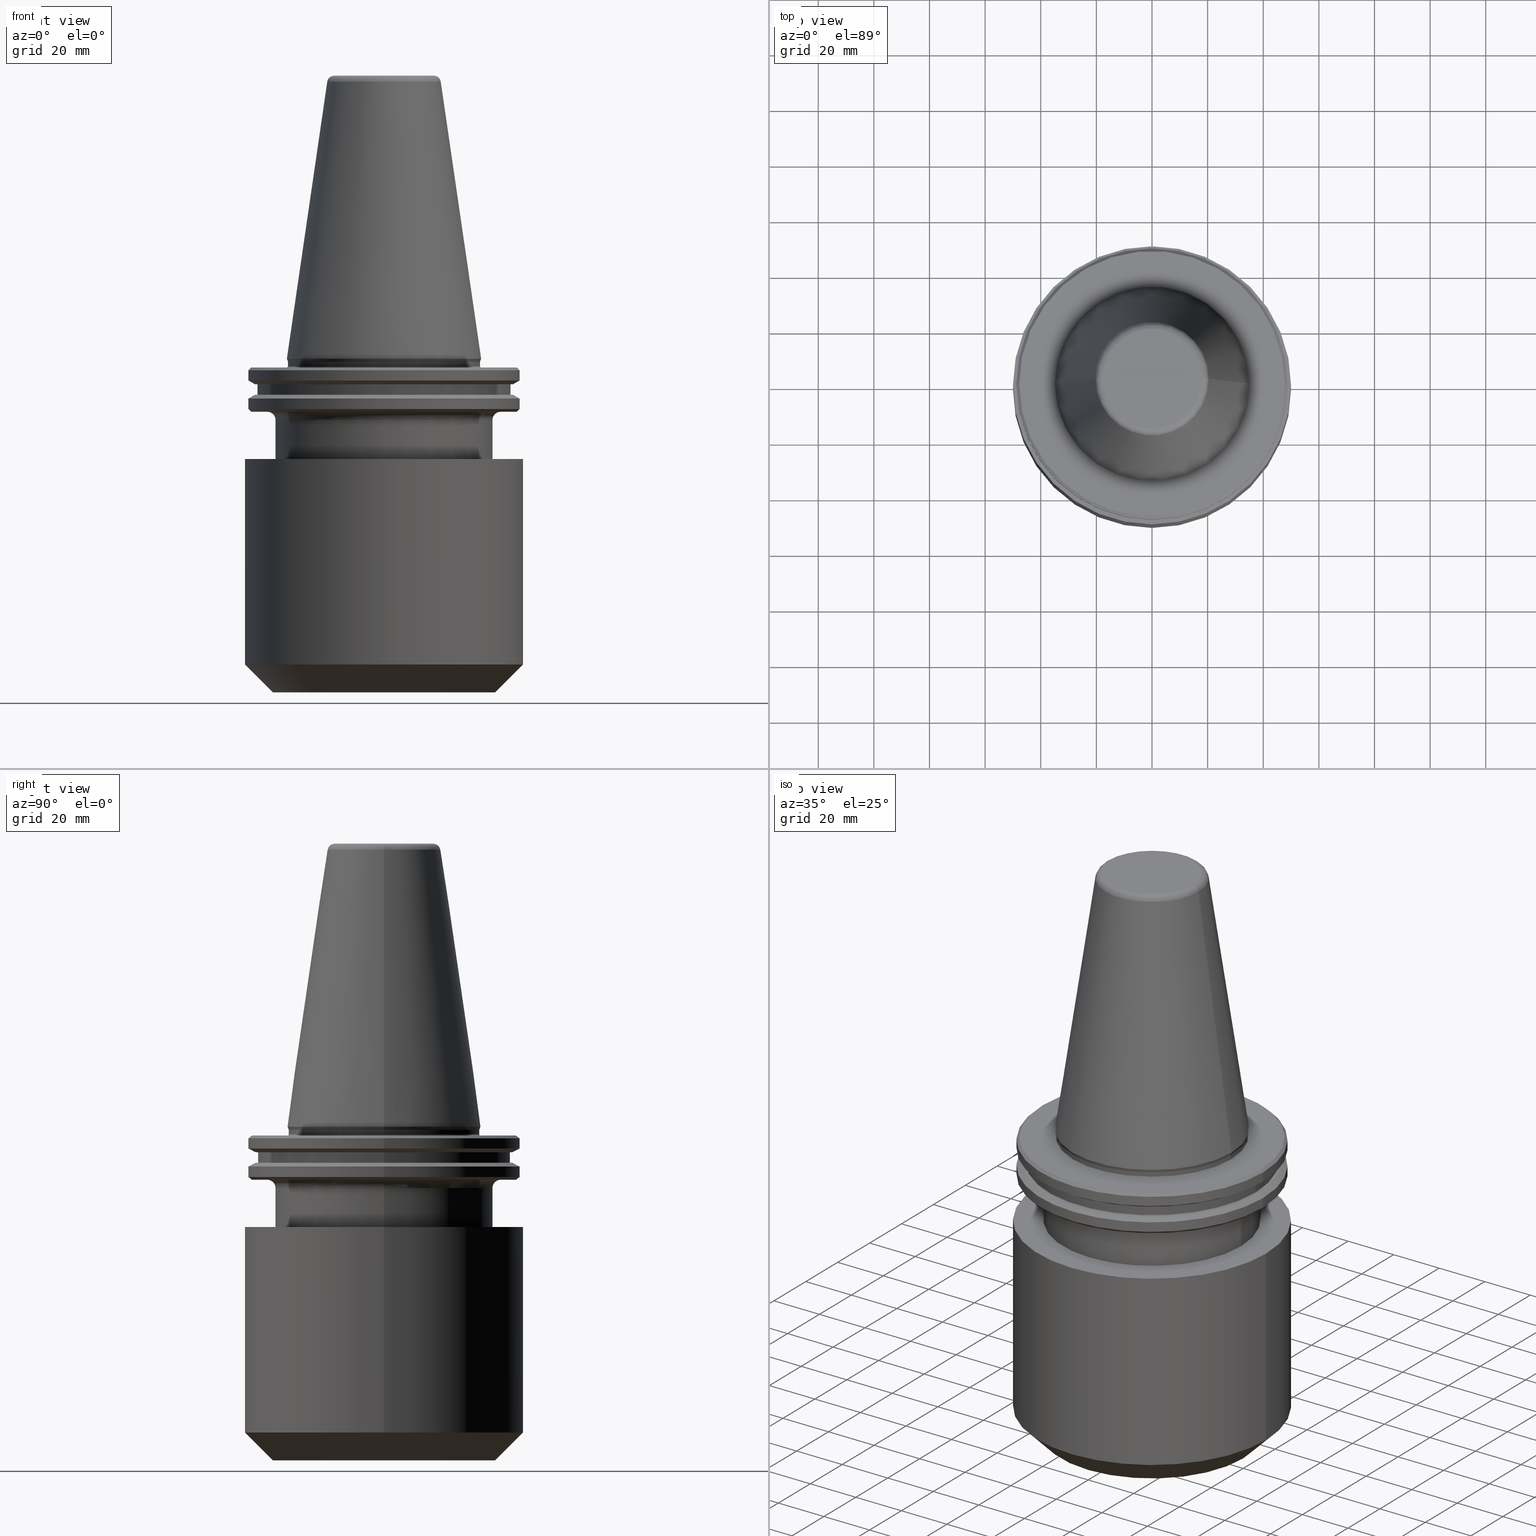
[diagram: canonical four-view strip — front | top / right | iso, engineering-drawing reading convention]
A machine part, canonical four-view strip (front | top / right | iso — engineering-drawing reading convention). The complete STEP part file that produces these views, byte-faithful:
ISO-10303-21;
HEADER;
FILE_DESCRIPTION (( 'STEP AP203' ),
    '1' );
FILE_NAME ('SK50 WE50 120 AD-6.3G15000 SL.STEP',
    '2019-04-30T06:06:53',
    ( '' ),
    ( '' ),
    'SwSTEP 2.0',
    'SolidWorks 2014',
    '' );
FILE_SCHEMA (( 'CONFIG_CONTROL_DESIGN' ));
ENDSEC;

DATA;
#1 = APPROVAL_DATE_TIME ( #236, #371 ) ;
#2 = ADVANCED_FACE ( 'NONE', ( #628 ), #834, .T. ) ;
#3 = CARTESIAN_POINT ( 'NONE',  ( 0.0000000000000000000, 0.0000000000000000000, -9.224999999999926800 ) ) ;
#4 = CONICAL_SURFACE ( 'NONE', #828, 34.49999999999975100, 0.3490658503990017300 ) ;
#5 = VERTEX_POINT ( 'NONE', #764 ) ;
#6 = CARTESIAN_POINT ( 'NONE',  ( 34.49999999999985100, 0.0000000000000000000, 101.7499999999999600 ) ) ;
#7 = CYLINDRICAL_SURFACE ( 'NONE', #526, 34.49999999999985100 ) ;
#8 = DIRECTION ( 'NONE',  ( 0.8660254037844421500, 0.0000000000000000000, 0.4999999999999939500 ) ) ;
#9 = ADVANCED_FACE ( 'NONE', ( #600 ), #388, .T. ) ;
#10 = ORIENTED_EDGE ( 'NONE', *, *, #416, .F. ) ;
#11 = CARTESIAN_POINT ( 'NONE',  ( 0.0000000000000000000, 0.0000000000000000000, -19.09999999999995200 ) ) ;
#12 = PLANE ( 'NONE',  #797 ) ;
#13 = DIRECTION ( 'NONE',  ( -0.0000000000000000000, -0.0000000000000000000, 1.000000000000000000 ) ) ;
#14 = DIRECTION ( 'NONE',  ( 1.000000000000000000, 0.0000000000000000000, 0.0000000000000000000 ) ) ;
#15 = CARTESIAN_POINT ( 'NONE',  ( -47.74999999999973700, 5.908920805885974100E-015, -19.09999999999995200 ) ) ;
#16 = CARTESIAN_POINT ( 'NONE',  ( 0.0000000000000000000, 46.37259526419079900, -9.224999999999926800 ) ) ;
#17 = ADVANCED_FACE ( 'NONE', ( #918 ), #1038, .T. ) ;
#18 = CARTESIAN_POINT ( 'NONE',  ( -48.75000000000018500, 5.970153145843369200E-015, -14.34759526419204800 ) ) ;
#19 = DIRECTION ( 'NONE',  ( -0.0000000000000000000, -0.0000000000000000000, 1.000000000000000000 ) ) ;
#20 = ADVANCED_FACE ( 'NONE', ( #1021 ), #574, .T. ) ;
#21 = CIRCLE ( 'NONE', #571, 48.75000000000018500 ) ;
#22 = EDGE_CURVE ( 'NONE', #427, #1022, #808, .T. ) ;
#23 = ORIENTED_EDGE ( 'NONE', *, *, #569, .F. ) ;
#24 = ORIENTED_EDGE ( 'NONE', *, *, #820, .T. ) ;
#25 = DIRECTION ( 'NONE',  ( 1.000000000000000000, 0.0000000000000000000, 0.0000000000000000000 ) ) ;
#26 = ADVANCED_FACE ( 'NONE', ( #418, #188 ), #1043, .F. ) ;
#27 = EDGE_LOOP ( 'NONE', ( #277, #480, #821, #372 ) ) ;
#28 = DIRECTION ( 'NONE',  ( -0.0000000000000000000, -0.0000000000000000000, 1.000000000000000000 ) ) ;
#29 = CIRCLE ( 'NONE', #493, 2.500000000000082200 ) ;
#30 = APPROVAL_PERSON_ORGANIZATION ( #264, #371, #673 ) ;
#31 = TOROIDAL_SURFACE ( 'NONE', #56, 17.92446055806129500, 2.500000000000083000 ) ;
#32 = ORIENTED_EDGE ( 'NONE', *, *, #390, .T. ) ;
#33 = ORIENTED_EDGE ( 'NONE', *, *, #230, .T. ) ;
#34 = CARTESIAN_POINT ( 'NONE',  ( 40.00000000000000000, 0.0000000000000000000, -120.0000000000000900 ) ) ;
#35 = ADVANCED_FACE ( 'NONE', ( #355 ), #107, .T. ) ;
#36 = CARTESIAN_POINT ( 'NONE',  ( 48.75000000000018500, 0.0000000000000000000, 101.7499999999999600 ) ) ;
#37 = EDGE_LOOP ( 'NONE', ( #383, #736, #765, #503 ) ) ;
#38 = MANIFOLD_SOLID_BREP ( 'Fillet1', #636 ) ;
#39 = FACE_OUTER_BOUND ( 'NONE', #379, .T. ) ;
#40 = ORIENTED_EDGE ( 'NONE', *, *, #233, .T. ) ;
#41 = CARTESIAN_POINT ( 'NONE',  ( 0.0000000000000000000, 17.92446055806129500, 101.7500000000000100 ) ) ;
#42 = EDGE_CURVE ( 'NONE', #728, #224, #550, .T. ) ;
#43 = CARTESIAN_POINT ( 'NONE',  ( 0.0000000000000000000, 0.0000000000000000000, -9.224999999999926800 ) ) ;
#44 = EDGE_LOOP ( 'NONE', ( #336, #865 ) ) ;
#45 = ADVANCED_FACE ( 'NONE', ( #991 ), #960, .T. ) ;
#46 = DIRECTION ( 'NONE',  ( 1.000000000000000000, 0.0000000000000000000, 0.0000000000000000000 ) ) ;
#47 = EDGE_CURVE ( 'NONE', #393, #826, #785, .T. ) ;
#48 = PLANE ( 'NONE',  #225 ) ;
#49 = EDGE_LOOP ( 'NONE', ( #1025, #672, #494, #343 ) ) ;
#50 = FACE_OUTER_BOUND ( 'NONE', #55, .T. ) ;
#51 = DIRECTION ( 'NONE',  ( 1.000000000000000000, 0.0000000000000000000, 0.0000000000000000000 ) ) ;
#52 = ORIENTED_EDGE ( 'NONE', *, *, #1032, .F. ) ;
#53 = AXIS2_PLACEMENT_3D ( 'NONE', #387, #302, #887 ) ;
#54 = CARTESIAN_POINT ( 'NONE',  ( 0.0000000000000000000, 0.0000000000000000000, -4.199999999999870500 ) ) ;
#55 = EDGE_LOOP ( 'NONE', ( #1073, #904 ) ) ;
#56 = AXIS2_PLACEMENT_3D ( 'NONE', #546, #141, #312 ) ;
#57 = ORIENTED_EDGE ( 'NONE', *, *, #519, .T. ) ;
#58 = ADVANCED_FACE ( 'NONE', ( #752 ), #741, .T. ) ;
#59 = ORIENTED_EDGE ( 'NONE', *, *, #987, .T. ) ;
#60 = CARTESIAN_POINT ( 'NONE',  ( 0.0000000000000000000, 0.0000000000000000000, 158.1180504483445200 ) ) ;
#61 = UNCERTAINTY_MEASURE_WITH_UNIT (LENGTH_MEASURE( 1.000000000000000100E-005 ), #530, 'distance_accuracy_value', 'NONE');
#62 = CIRCLE ( 'NONE', #467, 45.50000000000020600 ) ;
#63 = ORIENTED_EDGE ( 'NONE', *, *, #569, .T. ) ;
#64 = VERTEX_POINT ( 'NONE', #523 ) ;
#65 = TOROIDAL_SURFACE ( 'NONE', #573, 34.99999999999992200, 0.4999999999999726900 ) ;
#66 = CC_DESIGN_DATE_AND_TIME_ASSIGNMENT ( #1071, #663, ( #395 ) ) ;
#67 = ORIENTED_EDGE ( 'NONE', *, *, #952, .T. ) ;
#68 = EDGE_CURVE ( 'NONE', #995, #826, #333, .T. ) ;
#69 = CARTESIAN_POINT ( 'NONE',  ( -47.74999999999995700, 0.0000000000000000000, -3.199999999999869600 ) ) ;
#70 = VERTEX_POINT ( 'NONE', #936 ) ;
#71 = PRODUCT_DEFINITION_FORMATION_WITH_SPECIFIED_SOURCE ( 'ANY', '', #885, .NOT_KNOWN. ) ;
#72 = CIRCLE ( 'NONE', #352, 34.92500000000009700 ) ;
#73 = EDGE_LOOP ( 'NONE', ( #1005, #446, #320, #228 ) ) ;
#74 = DIRECTION ( 'NONE',  ( -0.0000000000000000000, -0.0000000000000000000, 1.000000000000000000 ) ) ;
#75 = DIRECTION ( 'NONE',  ( 1.000000000000000000, 0.0000000000000000000, 0.0000000000000000000 ) ) ;
#76 = ADVANCED_FACE ( 'NONE', ( #91, #317 ), #701, .F. ) ;
#77 = AXIS2_PLACEMENT_3D ( 'NONE', #790, #191, #536 ) ;
#78 = ORIENTED_EDGE ( 'NONE', *, *, #962, .T. ) ;
#79 = CIRCLE ( 'NONE', #758, 50.00000000000000000 ) ;
#80 = ADVANCED_FACE ( 'NONE', ( #508 ), #479, .T. ) ;
#81 = ORIENTED_EDGE ( 'NONE', *, *, #145, .F. ) ;
#82 = EDGE_CURVE ( 'NONE', #984, #717, #716, .T. ) ;
#83 = AXIS2_PLACEMENT_3D ( 'NONE', #671, #675, #774 ) ;
#84 = ORIENTED_EDGE ( 'NONE', *, *, #243, .T. ) ;
#85 = CARTESIAN_POINT ( 'NONE',  ( 0.0000000000000000000, 0.0000000000000000000, -12.97500000000006900 ) ) ;
#86 = CC_DESIGN_PERSON_AND_ORGANIZATION_ASSIGNMENT ( #875, #235, ( #395 ) ) ;
#87 = ADVANCED_FACE ( 'NONE', ( #288 ), #65, .F. ) ;
#88 = VECTOR ( 'NONE', #611, 1000.000000000000000 ) ;
#89 = EDGE_LOOP ( 'NONE', ( #832, #481, #917, #57 ) ) ;
#90 = DIRECTION ( 'NONE',  ( -1.000000000000000000, 1.224646799147355700E-016, 0.0000000000000000000 ) ) ;
#91 = FACE_OUTER_BOUND ( 'NONE', #423, .T. ) ;
#92 = DIRECTION ( 'NONE',  ( 0.0000000000000000000, 0.0000000000000000000, -1.000000000000000000 ) ) ;
#93 = DIRECTION ( 'NONE',  ( 1.000000000000000000, 0.0000000000000000000, 0.0000000000000000000 ) ) ;
#94 = EDGE_LOOP ( 'NONE', ( #455, #67, #796, #919 ) ) ;
#95 = CARTESIAN_POINT ( 'NONE',  ( -34.49999999999975100, 4.225031457058338200E-015, -1.167677903268715700 ) ) ;
#96 = ORIENTED_EDGE ( 'NONE', *, *, #329, .F. ) ;
#97 = LINE ( 'NONE', #627, #928 ) ;
#98 = DIRECTION ( 'NONE',  ( 1.000000000000000000, 0.0000000000000000000, 0.0000000000000000000 ) ) ;
#99 = DIRECTION ( 'NONE',  ( 1.224646799147353200E-016, 1.000000000000000000, 0.0000000000000000000 ) ) ;
#100 = AXIS2_PLACEMENT_3D ( 'NONE', #858, #516, #744 ) ;
#101 = DIRECTION ( 'NONE',  ( 1.000000000000000000, 0.0000000000000000000, 0.0000000000000000000 ) ) ;
#102 = ADVANCED_FACE ( 'NONE', ( #925 ), #4, .T. ) ;
#103 = DIRECTION ( 'NONE',  ( 1.000000000000000000, 0.0000000000000000000, 0.0000000000000000000 ) ) ;
#104 = ADVANCED_FACE ( 'NONE', ( #266 ), #655, .T. ) ;
#105 = CARTESIAN_POINT ( 'NONE',  ( 0.0000000000000000000, 0.0000000000000000000, 158.1180504483445200 ) ) ;
#106 = LINE ( 'NONE', #588, #937 ) ;
#107 = CONICAL_SURFACE ( 'NONE', #515, 48.75000000000018500, 1.047197551196599400 ) ;
#108 = ORIENTED_EDGE ( 'NONE', *, *, #1032, .T. ) ;
#109 = DIRECTION ( 'NONE',  ( -0.0000000000000000000, -0.0000000000000000000, 1.000000000000000000 ) ) ;
#110 = CC_DESIGN_APPROVAL ( #371, ( #395 ) ) ;
#111 = ADVANCED_FACE ( 'NONE', ( #239 ), #1041, .F. ) ;
#112 = DIRECTION ( 'NONE',  ( -0.0000000000000000000, -0.0000000000000000000, 1.000000000000000000 ) ) ;
#113 = EDGE_CURVE ( 'NONE', #743, #350, #903, .T. ) ;
#114 = ORIENTED_EDGE ( 'NONE', *, *, #666, .T. ) ;
#115 = ORIENTED_EDGE ( 'NONE', *, *, #158, .T. ) ;
#116 = AXIS2_PLACEMENT_3D ( 'NONE', #324, #150, #300 ) ;
#117 = CARTESIAN_POINT ( 'NONE',  ( 0.0000000000000000000, 0.0000000000000000000, -2.700000000000091200 ) ) ;
#118 = ORIENTED_EDGE ( 'NONE', *, *, #994, .T. ) ;
#119 = CALENDAR_DATE ( 2019, 30, 4 ) ;
#120 = EDGE_LOOP ( 'NONE', ( #267, #33, #114, #1015 ) ) ;
#121 = CIRCLE ( 'NONE', #186, 48.74999999999995700 ) ;
#122 = CARTESIAN_POINT ( 'NONE',  ( 0.0000000000000000000, 0.0000000000000000000, 101.7499999999999600 ) ) ;
#123 = ORIENTED_EDGE ( 'NONE', *, *, #347, .T. ) ;
#124 = DIRECTION ( 'NONE',  ( 1.000000000000000000, 0.0000000000000000000, 0.0000000000000000000 ) ) ;
#125 = APPROVAL ( #227, 'UNSPECIFIED' ) ;
#126 = CARTESIAN_POINT ( 'NONE',  ( 0.0000000000000000000, 0.0000000000000000000, 101.7499999999999600 ) ) ;
#127 = VERTEX_POINT ( 'NONE', #178 ) ;
#128 = DIRECTION ( 'NONE',  ( -1.000000000000000000, 1.224646799147352000E-016, 0.0000000000000000000 ) ) ;
#129 = AXIS2_PLACEMENT_3D ( 'NONE', #625, #544, #726 ) ;
#130 = EDGE_CURVE ( 'NONE', #809, #135, #878, .T. ) ;
#131 = PLANE ( 'NONE',  #442 ) ;
#132 = ADVANCED_FACE ( 'NONE', ( #684, #453 ), #12, .F. ) ;
#133 = CONICAL_SURFACE ( 'NONE', #116, 46.37259526419079900, 1.047197551196604700 ) ;
#134 = FACE_OUTER_BOUND ( 'NONE', #955, .T. ) ;
#135 = VERTEX_POINT ( 'NONE', #69 ) ;
#136 = AXIS2_PLACEMENT_3D ( 'NONE', #43, #298, #976 ) ;
#137 = DIRECTION ( 'NONE',  ( 0.0000000000000000000, -0.0000000000000000000, 1.000000000000000000 ) ) ;
#138 = DIRECTION ( 'NONE',  ( -0.1443082234293891500, 0.0000000000000000000, -0.9895327870518760800 ) ) ;
#139 = ORIENTED_EDGE ( 'NONE', *, *, #1061, .F. ) ;
#140 = CIRCLE ( 'NONE', #847, 34.49999999999975100 ) ;
#141 = DIRECTION ( 'NONE',  ( -0.0000000000000000000, -0.0000000000000000000, 1.000000000000000000 ) ) ;
#142 = DATE_AND_TIME ( #368, #584 ) ;
#143 = ORIENTED_EDGE ( 'NONE', *, *, #415, .F. ) ;
#144 = VECTOR ( 'NONE', #822, 999.9999999999998900 ) ;
#145 = EDGE_CURVE ( 'NONE', #153, #200, #206, .T. ) ;
#146 = ADVANCED_FACE ( 'NONE', ( #1062 ), #435, .F. ) ;
#147 = EDGE_LOOP ( 'NONE', ( #792, #905 ) ) ;
#148 = CARTESIAN_POINT ( 'NONE',  ( -48.75000000000018500, 5.970153145843369200E-015, -18.09999999999950400 ) ) ;
#149 = ORIENTED_EDGE ( 'NONE', *, *, #773, .T. ) ;
#150 = DIRECTION ( 'NONE',  ( -0.0000000000000000000, -0.0000000000000000000, 1.000000000000000000 ) ) ;
#151 = LINE ( 'NONE', #171, #1044 ) ;
#152 = CARTESIAN_POINT ( 'NONE',  ( 46.37259526419079900, 0.0000000000000000000, -9.224999999999926800 ) ) ;
#153 = VERTEX_POINT ( 'NONE', #421 ) ;
#154 = CIRCLE ( 'NONE', #504, 2.999999999999999100 ) ;
#155 = DIRECTION ( 'NONE',  ( 1.000000000000000000, 0.0000000000000000000, 0.0000000000000000000 ) ) ;
#156 = DIRECTION ( 'NONE',  ( -0.0000000000000000000, -0.0000000000000000000, 1.000000000000000000 ) ) ;
#157 = ADVANCED_FACE ( 'NONE', ( #414 ), #1036, .T. ) ;
#158 = EDGE_CURVE ( 'NONE', #827, #338, #185, .T. ) ;
#159 = DIRECTION ( 'NONE',  ( -0.0000000000000000000, -0.0000000000000000000, 1.000000000000000000 ) ) ;
#160 = DIRECTION ( 'NONE',  ( 0.0000000000000000000, -0.0000000000000000000, 1.000000000000000000 ) ) ;
#161 = VECTOR ( 'NONE', #521, 1000.000000000000000 ) ;
#162 = AXIS2_PLACEMENT_3D ( 'NONE', #911, #993, #509 ) ;
#163 = ORIENTED_EDGE ( 'NONE', *, *, #497, .F. ) ;
#164 = CARTESIAN_POINT ( 'NONE',  ( -50.00000000000000000, 6.123233995736766100E-015, -110.0000000000000700 ) ) ;
#165 = DIRECTION ( 'NONE',  ( 1.000000000000000000, 0.0000000000000000000, 0.0000000000000000000 ) ) ;
#166 = CIRCLE ( 'NONE', #162, 34.49999999999995000 ) ;
#167 = ORIENTED_EDGE ( 'NONE', *, *, #113, .F. ) ;
#168 = PERSON_AND_ORGANIZATION ( #1060, #714 ) ;
#169 = AXIS2_PLACEMENT_3D ( 'NONE', #807, #956, #212 ) ;
#170 = AXIS2_PLACEMENT_3D ( 'NONE', #318, #760, #419 ) ;
#171 = CARTESIAN_POINT ( 'NONE',  ( -45.50000000000020600, 5.572142936120482400E-015, 101.7499999999999600 ) ) ;
#172 = EDGE_LOOP ( 'NONE', ( #139, #590, #63, #685 ) ) ;
#173 = CIRCLE ( 'NONE', #1068, 47.74999999999995700 ) ;
#174 = DIRECTION ( 'NONE',  ( 1.000000000000000000, 0.0000000000000000000, 0.0000000000000000000 ) ) ;
#175 = ORIENTED_EDGE ( 'NONE', *, *, #519, .F. ) ;
#176 = DIRECTION ( 'NONE',  ( 0.0000000000000000000, -1.000000000000000000, 0.0000000000000000000 ) ) ;
#177 = VERTEX_POINT ( 'NONE', #444 ) ;
#178 = CARTESIAN_POINT ( 'NONE',  ( -45.50000000000020600, 5.572142936120482400E-015, -9.224999999999926800 ) ) ;
#179 = ORIENTED_EDGE ( 'NONE', *, *, #876, .F. ) ;
#180 = CARTESIAN_POINT ( 'NONE',  ( 0.0000000000000000000, 0.0000000000000000000, 158.1180504483445200 ) ) ;
#181 = DIRECTION ( 'NONE',  ( -0.3420201433257963300, 4.188538737678555300E-017, 0.9396926207858620200 ) ) ;
#182 = CARTESIAN_POINT ( 'NONE',  ( 0.0000000000000000000, 0.0000000000000000000, -12.97500000000006900 ) ) ;
#183 = VECTOR ( 'NONE', #346, 1000.000000000000000 ) ;
#184 = DIRECTION ( 'NONE',  ( -0.0000000000000000000, -0.0000000000000000000, 1.000000000000000000 ) ) ;
#185 = CIRCLE ( 'NONE', #647, 39.00000000000000000 ) ;
#186 = AXIS2_PLACEMENT_3D ( 'NONE', #1040, #464, #299 ) ;
#187 = DIRECTION ( 'NONE',  ( -0.0000000000000000000, -0.0000000000000000000, 1.000000000000000000 ) ) ;
#188 = FACE_OUTER_BOUND ( 'NONE', #551, .T. ) ;
#189 = CARTESIAN_POINT ( 'NONE',  ( 0.0000000000000000000, 0.0000000000000000000, 158.1180504483445200 ) ) ;
#190 = DIRECTION ( 'NONE',  ( 1.000000000000000000, 0.0000000000000000000, 0.0000000000000000000 ) ) ;
#191 = DIRECTION ( 'NONE',  ( -0.0000000000000000000, -0.0000000000000000000, 1.000000000000000000 ) ) ;
#192 = LINE ( 'NONE', #499, #1027 ) ;
#193 = LOCAL_TIME ( 11, 36, 53.00000000000000000, #425 ) ;
#194 = DIRECTION ( 'NONE',  ( -0.0000000000000000000, -0.0000000000000000000, 1.000000000000000000 ) ) ;
#195 = CIRCLE ( 'NONE', #704, 3.000000000000002700 ) ;
#196 = ORIENTED_EDGE ( 'NONE', *, *, #460, .T. ) ;
#197 = ORIENTED_EDGE ( 'NONE', *, *, #1066, .F. ) ;
#198 = CIRCLE ( 'NONE', #891, 47.74999999999973700 ) ;
#199 = DIRECTION ( 'NONE',  ( -0.8660254037844421500, 1.060575238724911200E-016, 0.4999999999999939500 ) ) ;
#200 = VERTEX_POINT ( 'NONE', #348 ) ;
#201 = CARTESIAN_POINT ( 'NONE',  ( -48.75000000000018500, 0.0000000000000000000, -14.34759526419204800 ) ) ;
#202 = ORIENTED_EDGE ( 'NONE', *, *, #447, .T. ) ;
#203 = DIRECTION ( 'NONE',  ( -1.000000000000000000, 0.0000000000000000000, 0.0000000000000000000 ) ) ;
#204 = LINE ( 'NONE', #857, #183 ) ;
#205 = DIRECTION ( 'NONE',  ( -0.0000000000000000000, -0.0000000000000000000, 1.000000000000000000 ) ) ;
#206 = CIRCLE ( 'NONE', #915, 46.37259526419079900 ) ;
#207 = DIRECTION ( 'NONE',  ( 1.000000000000000000, 0.0000000000000000000, 0.0000000000000000000 ) ) ;
#208 = ORIENTED_EDGE ( 'NONE', *, *, #358, .F. ) ;
#209 = AXIS2_PLACEMENT_3D ( 'NONE', #849, #767, #90 ) ;
#210 = APPROVAL_ROLE ( '' ) ;
#211 = VERTEX_POINT ( 'NONE', #483 ) ;
#212 = DIRECTION ( 'NONE',  ( 1.000000000000000000, 0.0000000000000000000, 0.0000000000000000000 ) ) ;
#213 = EDGE_CURVE ( 'NONE', #809, #475, #833, .T. ) ;
#214 = ORIENTED_EDGE ( 'NONE', *, *, #497, .T. ) ;
#215 = DIRECTION ( 'NONE',  ( 0.0000000000000000000, -1.000000000000000000, 0.0000000000000000000 ) ) ;
#216 = ORIENTED_EDGE ( 'NONE', *, *, #927, .F. ) ;
#217 = AXIS2_PLACEMENT_3D ( 'NONE', #222, #420, #654 ) ;
#218 = AXIS2_PLACEMENT_3D ( 'NONE', #105, #1046, #734 ) ;
#219 = ORIENTED_EDGE ( 'NONE', *, *, #603, .T. ) ;
#220 = DIRECTION ( 'NONE',  ( -0.0000000000000000000, -0.0000000000000000000, 1.000000000000000000 ) ) ;
#221 = CALENDAR_DATE ( 2019, 30, 4 ) ;
#222 = CARTESIAN_POINT ( 'NONE',  ( 0.0000000000000000000, 0.0000000000000000000, 0.0000000000000000000 ) ) ;
#223 = VECTOR ( 'NONE', #980, 1000.000000000000100 ) ;
#224 = VERTEX_POINT ( 'NONE', #893 ) ;
#225 = AXIS2_PLACEMENT_3D ( 'NONE', #817, #137, #466 ) ;
#226 = ORIENTED_EDGE ( 'NONE', *, *, #460, .F. ) ;
#227 = APPROVAL_STATUS ( 'not_yet_approved' ) ;
#228 = ORIENTED_EDGE ( 'NONE', *, *, #921, .F. ) ;
#229 = CARTESIAN_POINT ( 'NONE',  ( 0.0000000000000000000, 0.0000000000000000000, -22.09999999999995200 ) ) ;
#230 = EDGE_CURVE ( 'NONE', #338, #827, #855, .T. ) ;
#231 = DIRECTION ( 'NONE',  ( -0.0000000000000000000, -0.0000000000000000000, 1.000000000000000000 ) ) ;
#232 = ADVANCED_FACE ( 'NONE', ( #624 ), #31, .T. ) ;
#233 = EDGE_CURVE ( 'NONE', #64, #5, #154, .T. ) ;
#234 = CONICAL_SURFACE ( 'NONE', #738, 47.74999999999973700, 0.7853981633974482800 ) ;
#235 = PERSON_AND_ORGANIZATION_ROLE ( 'creator' ) ;
#236 = DATE_AND_TIME ( #452, #681 ) ;
#237 = PLANE ( 'NONE',  #565 ) ;
#238 = AXIS2_PLACEMENT_3D ( 'NONE', #556, #750, #986 ) ;
#239 = FACE_OUTER_BOUND ( 'NONE', #868, .T. ) ;
#240 = ORIENTED_EDGE ( 'NONE', *, *, #896, .F. ) ;
#241 = CARTESIAN_POINT ( 'NONE',  ( 0.0000000000000000000, 0.0000000000000000000, -1.167677903268715700 ) ) ;
#242 = FACE_OUTER_BOUND ( 'NONE', #511, .T. ) ;
#243 = EDGE_CURVE ( 'NONE', #224, #306, #384, .T. ) ;
#244 = ORIENTED_EDGE ( 'NONE', *, *, #22, .T. ) ;
#245 = DIRECTION ( 'NONE',  ( -0.0000000000000000000, -0.0000000000000000000, 1.000000000000000000 ) ) ;
#246 = PRODUCT_DEFINITION_SHAPE ( 'NONE', 'NONE',  #395 ) ;
#247 = CARTESIAN_POINT ( 'NONE',  ( 0.0000000000000000000, 0.0000000000000000000, -120.0000000000000900 ) ) ;
#248 = EDGE_CURVE ( 'NONE', #393, #660, #806, .T. ) ;
#249 = DIRECTION ( 'NONE',  ( 0.0000000000000000000, 0.0000000000000000000, -1.000000000000000000 ) ) ;
#250 = DIRECTION ( 'NONE',  ( -0.0000000000000000000, -0.0000000000000000000, 1.000000000000000000 ) ) ;
#251 = ADVANCED_FACE ( 'NONE', ( #1017 ), #133, .T. ) ;
#252 = DIRECTION ( 'NONE',  ( 0.7071067811865474600, 0.0000000000000000000, 0.7071067811865475700 ) ) ;
#253 = CONICAL_SURFACE ( 'NONE', #783, 34.49999999999975100, 0.3490658503990017300 ) ;
#254 = EDGE_CURVE ( 'NONE', #200, #153, #351, .T. ) ;
#255 = EDGE_LOOP ( 'NONE', ( #753, #869, #259, #118 ) ) ;
#256 = DIRECTION ( 'NONE',  ( -0.0000000000000000000, -0.0000000000000000000, 1.000000000000000000 ) ) ;
#257 = ORIENTED_EDGE ( 'NONE', *, *, #666, .F. ) ;
#258 = CARTESIAN_POINT ( 'NONE',  ( 34.49999999999975100, 0.0000000000000000000, -1.167677903268715700 ) ) ;
#259 = ORIENTED_EDGE ( 'NONE', *, *, #391, .T. ) ;
#260 = AXIS2_PLACEMENT_3D ( 'NONE', #687, #19, #440 ) ;
#261 = DIRECTION ( 'NONE',  ( -0.0000000000000000000, -0.0000000000000000000, 1.000000000000000000 ) ) ;
#262 = FACE_OUTER_BOUND ( 'NONE', #527, .T. ) ;
#263 = EDGE_CURVE ( 'NONE', #475, #334, #989, .T. ) ;
#264 = PERSON_AND_ORGANIZATION ( #1060, #714 ) ;
#265 =( NAMED_UNIT ( * ) SI_UNIT ( $, .STERADIAN. ) SOLID_ANGLE_UNIT ( ) );
#266 = FACE_OUTER_BOUND ( 'NONE', #982, .T. ) ;
#267 = ORIENTED_EDGE ( 'NONE', *, *, #712, .F. ) ;
#268 = VERTEX_POINT ( 'NONE', #782 ) ;
#269 = AXIS2_PLACEMENT_3D ( 'NONE', #990, #859, #165 ) ;
#270 = DIRECTION ( 'NONE',  ( 1.000000000000000000, 0.0000000000000000000, 0.0000000000000000000 ) ) ;
#271 = AXIS2_PLACEMENT_3D ( 'NONE', #614, #1034, #996 ) ;
#272 = ORIENTED_EDGE ( 'NONE', *, *, #823, .T. ) ;
#273 = VECTOR ( 'NONE', #545, 1000.000000000000000 ) ;
#274 = ORIENTED_EDGE ( 'NONE', *, *, #471, .T. ) ;
#275 = DIRECTION ( 'NONE',  ( 1.000000000000000000, 0.0000000000000000000, 0.0000000000000000000 ) ) ;
#276 = CARTESIAN_POINT ( 'NONE',  ( 0.0000000000000000000, 0.0000000000000000000, -14.34759526419204800 ) ) ;
#277 = ORIENTED_EDGE ( 'NONE', *, *, #248, .T. ) ;
#278 = DIRECTION ( 'NONE',  ( 1.000000000000000000, 0.0000000000000000000, 0.0000000000000000000 ) ) ;
#279 = DIRECTION ( 'NONE',  ( -0.0000000000000000000, -0.0000000000000000000, 1.000000000000000000 ) ) ;
#280 = CIRCLE ( 'NONE', #900, 42.00000000000000000 ) ;
#281 = DIRECTION ( 'NONE',  ( -0.0000000000000000000, -0.0000000000000000000, 1.000000000000000000 ) ) ;
#282 = ORIENTED_EDGE ( 'NONE', *, *, #254, .T. ) ;
#283 = ADVANCED_FACE ( 'NONE', ( #784 ), #354, .F. ) ;
#284 = CARTESIAN_POINT ( 'NONE',  ( 39.00000000000000000, 0.0000000000000000000, -36.09999999999993700 ) ) ;
#285 = ORIENTED_EDGE ( 'NONE', *, *, #789, .T. ) ;
#286 = VERTEX_POINT ( 'NONE', #754 ) ;
#287 = VECTOR ( 'NONE', #199, 1000.000000000000000 ) ;
#288 = FACE_OUTER_BOUND ( 'NONE', #172, .T. ) ;
#289 = CARTESIAN_POINT ( 'NONE',  ( 34.99999999999992200, 0.0000000000000000000, -3.199999999999966900 ) ) ;
#290 = DIRECTION ( 'NONE',  ( 0.0000000000000000000, 0.0000000000000000000, -1.000000000000000000 ) ) ;
#291 = ORIENTED_EDGE ( 'NONE', *, *, #781, .F. ) ;
#292 = AXIS2_PLACEMENT_3D ( 'NONE', #810, #215, #633 ) ;
#293 = VERTEX_POINT ( 'NONE', #641 ) ;
#294 = CYLINDRICAL_SURFACE ( 'NONE', #53, 48.75000000000018500 ) ;
#295 = DIRECTION ( 'NONE',  ( -0.0000000000000000000, -0.0000000000000000000, 1.000000000000000000 ) ) ;
#296 = SECURITY_CLASSIFICATION ( '', '', #1079 ) ;
#297 = DIRECTION ( 'NONE',  ( -0.0000000000000000000, -0.0000000000000000000, 1.000000000000000000 ) ) ;
#298 = DIRECTION ( 'NONE',  ( -0.0000000000000000000, -0.0000000000000000000, 1.000000000000000000 ) ) ;
#299 = DIRECTION ( 'NONE',  ( 1.000000000000000000, 0.0000000000000000000, 0.0000000000000000000 ) ) ;
#300 = DIRECTION ( 'NONE',  ( 1.000000000000000000, 0.0000000000000000000, 0.0000000000000000000 ) ) ;
#301 = EDGE_CURVE ( 'NONE', #306, #999, #572, .T. ) ;
#302 = DIRECTION ( 'NONE',  ( -0.0000000000000000000, -0.0000000000000000000, 1.000000000000000000 ) ) ;
#303 = EDGE_LOOP ( 'NONE', ( #115, #579, #884, #257 ) ) ;
#304 = FACE_OUTER_BOUND ( 'NONE', #933, .T. ) ;
#305 = CARTESIAN_POINT ( 'NONE',  ( -48.74999999999995700, 5.970153145843342400E-015, -4.199999999999870500 ) ) ;
#306 = VERTEX_POINT ( 'NONE', #164 ) ;
#307 = DIRECTION ( 'NONE',  ( 1.000000000000000000, 0.0000000000000000000, 0.0000000000000000000 ) ) ;
#308 = EDGE_CURVE ( 'NONE', #472, #326, #548, .T. ) ;
#309 = ORIENTED_EDGE ( 'NONE', *, *, #1067, .F. ) ;
#310 = DIRECTION ( 'NONE',  ( -0.0000000000000000000, -0.0000000000000000000, 1.000000000000000000 ) ) ;
#311 = ORIENTED_EDGE ( 'NONE', *, *, #145, .T. ) ;
#312 = DIRECTION ( 'NONE',  ( 1.000000000000000000, 0.0000000000000000000, 0.0000000000000000000 ) ) ;
#313 = FACE_OUTER_BOUND ( 'NONE', #926, .T. ) ;
#314 = ADVANCED_FACE ( 'NONE', ( #304 ), #498, .T. ) ;
#315 = EDGE_CURVE ( 'NONE', #660, #786, #106, .T. ) ;
#316 = DIRECTION ( 'NONE',  ( -0.0000000000000000000, -0.0000000000000000000, 1.000000000000000000 ) ) ;
#317 = FACE_BOUND ( 'NONE', #44, .T. ) ;
#318 = CARTESIAN_POINT ( 'NONE',  ( 0.0000000000000000000, 0.0000000000000000000, -4.199999999999870500 ) ) ;
#319 = EDGE_CURVE ( 'NONE', #863, #484, #331, .T. ) ;
#320 = ORIENTED_EDGE ( 'NONE', *, *, #263, .T. ) ;
#321 = FACE_OUTER_BOUND ( 'NONE', #670, .T. ) ;
#322 = CARTESIAN_POINT ( 'NONE',  ( 47.74999999999973700, 0.0000000000000000000, -19.09999999999995200 ) ) ;
#323 = DIRECTION ( 'NONE',  ( -0.0000000000000000000, -0.0000000000000000000, 1.000000000000000000 ) ) ;
#324 = CARTESIAN_POINT ( 'NONE',  ( 0.0000000000000000000, 0.0000000000000000000, -9.224999999999926800 ) ) ;
#325 = APPLICATION_PROTOCOL_DEFINITION ( 'international standard', 'config_control_design', 1994, #877 ) ;
#326 = VERTEX_POINT ( 'NONE', #1063 ) ;
#327 = CARTESIAN_POINT ( 'NONE',  ( 48.75000000000018500, 5.970153145843369200E-015, -14.34759526419204800 ) ) ;
#328 = DIRECTION ( 'NONE',  ( -1.000000000000000000, 0.0000000000000000000, 0.0000000000000000000 ) ) ;
#329 = EDGE_CURVE ( 'NONE', #339, #999, #79, .T. ) ;
#330 = ADVANCED_FACE ( 'NONE', ( #751 ), #253, .T. ) ;
#331 = CIRCLE ( 'NONE', #529, 48.74999999999995700 ) ;
#332 = CARTESIAN_POINT ( 'NONE',  ( 0.0000000000000000000, 0.0000000000000000000, -3.199999999999869600 ) ) ;
#333 = LINE ( 'NONE', #1020, #946 ) ;
#334 = VERTEX_POINT ( 'NONE', #305 ) ;
#335 = AXIS2_PLACEMENT_3D ( 'NONE', #812, #220, #732 ) ;
#336 = ORIENTED_EDGE ( 'NONE', *, *, #894, .T. ) ;
#337 = CARTESIAN_POINT ( 'NONE',  ( 17.92446055806129500, 0.0000000000000000000, 101.7500000000000900 ) ) ;
#338 = VERTEX_POINT ( 'NONE', #813 ) ;
#339 = VERTEX_POINT ( 'NONE', #1029 ) ;
#340 = DIRECTION ( 'NONE',  ( 1.000000000000000000, 0.0000000000000000000, 0.0000000000000000000 ) ) ;
#341 = LOCAL_TIME ( 11, 36, 53.00000000000000000, #557 ) ;
#342 = AXIS2_PLACEMENT_3D ( 'NONE', #473, #160, #909 ) ;
#343 = ORIENTED_EDGE ( 'NONE', *, *, #853, .F. ) ;
#344 = FACE_BOUND ( 'NONE', #740, .T. ) ;
#345 = ORIENTED_EDGE ( 'NONE', *, *, #315, .F. ) ;
#346 = DIRECTION ( 'NONE',  ( -0.0000000000000000000, -0.0000000000000000000, 1.000000000000000000 ) ) ;
#347 = EDGE_CURVE ( 'NONE', #660, #393, #912, .T. ) ;
#348 = CARTESIAN_POINT ( 'NONE',  ( -46.37259526419079900, 5.824579090844020300E-015, -9.224999999999926800 ) ) ;
#349 = CARTESIAN_POINT ( 'NONE',  ( 0.0000000000000000000, 0.0000000000000000000, -9.224999999999926800 ) ) ;
#350 = VERTEX_POINT ( 'NONE', #1078 ) ;
#351 = CIRCLE ( 'NONE', #136, 46.37259526419079900 ) ;
#352 = AXIS2_PLACEMENT_3D ( 'NONE', #880, #205, #458 ) ;
#353 = AXIS2_PLACEMENT_3D ( 'NONE', #401, #854, #489 ) ;
#354 = TOROIDAL_SURFACE ( 'NONE', #457, 42.00000000000000000, 3.000000000000000000 ) ;
#355 = FACE_OUTER_BOUND ( 'NONE', #255, .T. ) ;
#356 = ORIENTED_EDGE ( 'NONE', *, *, #375, .T. ) ;
#357 = CARTESIAN_POINT ( 'NONE',  ( 0.0000000000000000000, 0.0000000000000000000, -120.0000000000000900 ) ) ;
#358 = EDGE_CURVE ( 'NONE', #224, #728, #703, .T. ) ;
#359 = DIRECTION ( 'NONE',  ( -1.000000000000000000, 0.0000000000000000000, 0.0000000000000000000 ) ) ;
#360 = DIRECTION ( 'NONE',  ( 1.000000000000000000, 0.0000000000000000000, 0.0000000000000000000 ) ) ;
#361 = CARTESIAN_POINT ( 'NONE',  ( 0.0000000000000000000, 0.0000000000000000000, -4.199999999999870500 ) ) ;
#362 = DIRECTION ( 'NONE',  ( -0.0000000000000000000, -0.0000000000000000000, 1.000000000000000000 ) ) ;
#363 = EDGE_CURVE ( 'NONE', #64, #268, #280, .T. ) ;
#364 = DIRECTION ( 'NONE',  ( 1.000000000000000000, 0.0000000000000000000, 0.0000000000000000000 ) ) ;
#365 = ORIENTED_EDGE ( 'NONE', *, *, #894, .F. ) ;
#366 = LINE ( 'NONE', #696, #1000 ) ;
#367 = EDGE_LOOP ( 'NONE', ( #644, #244, #78, #552 ) ) ;
#368 = CALENDAR_DATE ( 2019, 30, 4 ) ;
#369 = ADVANCED_FACE ( 'NONE', ( #468, #50 ), #237, .F. ) ;
#370 = CARTESIAN_POINT ( 'NONE',  ( 48.75000000000018500, 0.0000000000000000000, -18.09999999999950400 ) ) ;
#371 = APPROVAL ( #757, 'UNSPECIFIED' ) ;
#372 = ORIENTED_EDGE ( 'NONE', *, *, #496, .F. ) ;
#373 = AXIS2_PLACEMENT_3D ( 'NONE', #397, #362, #470 ) ;
#374 = FACE_OUTER_BOUND ( 'NONE', #618, .T. ) ;
#375 = EDGE_CURVE ( 'NONE', #939, #472, #890, .T. ) ;
#376 = ORIENTED_EDGE ( 'NONE', *, *, #699, .T. ) ;
#377 = ORIENTED_EDGE ( 'NONE', *, *, #823, .F. ) ;
#378 = CARTESIAN_POINT ( 'NONE',  ( 0.0000000000000000000, 0.0000000000000000000, -9.224999999999926800 ) ) ;
#379 = EDGE_LOOP ( 'NONE', ( #311, #285, #532, #226 ) ) ;
#380 = CARTESIAN_POINT ( 'NONE',  ( -42.00000000000000000, 5.143516556418883300E-015, -22.09999999999995200 ) ) ;
#381 = CYLINDRICAL_SURFACE ( 'NONE', #385, 48.74999999999995700 ) ;
#382 = CARTESIAN_POINT ( 'NONE',  ( 20.39829252569114000, 3.387574655494023600E-015, 99.61077055857353500 ) ) ;
#383 = ORIENTED_EDGE ( 'NONE', *, *, #447, .F. ) ;
#384 = LINE ( 'NONE', #935, #570 ) ;
#385 = AXIS2_PLACEMENT_3D ( 'NONE', #1016, #1081, #932 ) ;
#386 = AXIS2_PLACEMENT_3D ( 'NONE', #676, #392, #406 ) ;
#387 = CARTESIAN_POINT ( 'NONE',  ( 0.0000000000000000000, 0.0000000000000000000, 101.7499999999999600 ) ) ;
#388 = CYLINDRICAL_SURFACE ( 'NONE', #373, 48.75000000000018500 ) ;
#389 = DIRECTION ( 'NONE',  ( -0.0000000000000000000, -0.0000000000000000000, 1.000000000000000000 ) ) ;
#390 = EDGE_CURVE ( 'NONE', #776, #426, #21, .T. ) ;
#391 = EDGE_CURVE ( 'NONE', #211, #844, #731, .T. ) ;
#392 = DIRECTION ( 'NONE',  ( -0.0000000000000000000, -0.0000000000000000000, 1.000000000000000000 ) ) ;
#393 = VERTEX_POINT ( 'NONE', #382 ) ;
#394 = PERSON_AND_ORGANIZATION_ROLE ( 'design_supplier' ) ;
#395 = PRODUCT_DEFINITION ( 'UNKNOWN', '', #71, #602 ) ;
#396 = CIRCLE ( 'NONE', #474, 46.37259526419124000 ) ;
#397 = CARTESIAN_POINT ( 'NONE',  ( 0.0000000000000000000, 0.0000000000000000000, 101.7499999999999600 ) ) ;
#398 = EDGE_CURVE ( 'NONE', #177, #5, #668, .T. ) ;
#399 = PERSON_AND_ORGANIZATION ( #1060, #714 ) ;
#400 = EDGE_CURVE ( 'NONE', #5, #177, #445, .T. ) ;
#401 = CARTESIAN_POINT ( 'NONE',  ( 0.0000000000000000000, 0.0000000000000000000, -3.199999999999869600 ) ) ;
#402 = LINE ( 'NONE', #772, #643 ) ;
#403 = EDGE_LOOP ( 'NONE', ( #648, #948, #96, #291 ) ) ;
#404 = DIRECTION ( 'NONE',  ( 0.0000000000000000000, 0.0000000000000000000, -1.000000000000000000 ) ) ;
#405 = LINE ( 'NONE', #563, #589 ) ;
#406 = DIRECTION ( 'NONE',  ( 1.000000000000000000, 0.0000000000000000000, 0.0000000000000000000 ) ) ;
#407 = ORIENTED_EDGE ( 'NONE', *, *, #811, .F. ) ;
#408 = AXIS2_PLACEMENT_3D ( 'NONE', #769, #507, #678 ) ;
#409 = CARTESIAN_POINT ( 'NONE',  ( 0.0000000000000000000, 0.0000000000000000000, -1.167677903268715700 ) ) ;
#410 = PERSON_AND_ORGANIZATION_ROLE ( 'design_owner' ) ;
#411 = VECTOR ( 'NONE', #181, 999.9999999999998900 ) ;
#412 = ADVANCED_FACE ( 'NONE', ( #1072 ), #1047, .T. ) ;
#413 = DIRECTION ( 'NONE',  ( 1.000000000000000000, 0.0000000000000000000, 0.0000000000000000000 ) ) ;
#414 = FACE_OUTER_BOUND ( 'NONE', #718, .T. ) ;
#415 = EDGE_CURVE ( 'NONE', #268, #177, #195, .T. ) ;
#416 = EDGE_CURVE ( 'NONE', #776, #543, #867, .T. ) ;
#417 = CARTESIAN_POINT ( 'NONE',  ( 0.0000000000000000000, 0.0000000000000000000, -14.34759526419204800 ) ) ;
#418 = FACE_BOUND ( 'NONE', #860, .T. ) ;
#419 = DIRECTION ( 'NONE',  ( 1.000000000000000000, 0.0000000000000000000, 0.0000000000000000000 ) ) ;
#420 = DIRECTION ( 'NONE',  ( 0.0000000000000000000, 0.0000000000000000000, 1.000000000000000000 ) ) ;
#421 = CARTESIAN_POINT ( 'NONE',  ( 46.37259526419079900, 0.0000000000000000000, -9.224999999999926800 ) ) ;
#422 = AXIS2_PLACEMENT_3D ( 'NONE', #587, #836, #174 ) ;
#423 = EDGE_LOOP ( 'NONE', ( #81, #768 ) ) ;
#424 = CIRCLE ( 'NONE', #422, 42.00000000000000000 ) ;
#425 = COORDINATED_UNIVERSAL_TIME_OFFSET ( 5, 30, .AHEAD. ) ;
#426 = VERTEX_POINT ( 'NONE', #148 ) ;
#427 = VERTEX_POINT ( 'NONE', #626 ) ;
#428 = AXIS2_PLACEMENT_3D ( 'NONE', #599, #13, #101 ) ;
#429 = CC_DESIGN_PERSON_AND_ORGANIZATION_ASSIGNMENT ( #477, #410, ( #885 ) ) ;
#430 = VERTEX_POINT ( 'NONE', #322 ) ;
#431 = DIRECTION ( 'NONE',  ( -0.0000000000000000000, -0.0000000000000000000, 1.000000000000000000 ) ) ;
#432 = DIRECTION ( 'NONE',  ( 1.000000000000000000, 0.0000000000000000000, 0.0000000000000000000 ) ) ;
#433 = LINE ( 'NONE', #6, #1058 ) ;
#434 = LOCAL_TIME ( 11, 36, 53.00000000000000000, #652 ) ;
#435 = TOROIDAL_SURFACE ( 'NONE', #658, 42.00000000000000000, 3.000000000000000000 ) ;
#436 = DIRECTION ( 'NONE',  ( 1.000000000000000000, 0.0000000000000000000, 0.0000000000000000000 ) ) ;
#437 = DIRECTION ( 'NONE',  ( 0.3420201433257963300, 0.0000000000000000000, 0.9396926207858620200 ) ) ;
#438 = ORIENTED_EDGE ( 'NONE', *, *, #363, .F. ) ;
#439 = CARTESIAN_POINT ( 'NONE',  ( 48.74999999999995700, 0.0000000000000000000, -7.852404735807838600 ) ) ;
#440 = DIRECTION ( 'NONE',  ( 1.000000000000000000, 0.0000000000000000000, 0.0000000000000000000 ) ) ;
#441 = AXIS2_PLACEMENT_3D ( 'NONE', #998, #583, #763 ) ;
#442 = AXIS2_PLACEMENT_3D ( 'NONE', #41, #547, #954 ) ;
#443 = DIRECTION ( 'NONE',  ( -0.0000000000000000000, -0.0000000000000000000, 1.000000000000000000 ) ) ;
#444 = CARTESIAN_POINT ( 'NONE',  ( -39.00000000000000000, 4.776122516674677900E-015, -22.09999999999995200 ) ) ;
#445 = CIRCLE ( 'NONE', #631, 39.00000000000000000 ) ;
#446 = ORIENTED_EDGE ( 'NONE', *, *, #213, .T. ) ;
#447 = EDGE_CURVE ( 'NONE', #484, #334, #402, .T. ) ;
#448 = ADVANCED_FACE ( 'NONE', ( #134 ), #845, .T. ) ;
#449 = CARTESIAN_POINT ( 'NONE',  ( 0.0000000000000000000, 0.0000000000000000000, -14.34759526419204800 ) ) ;
#450 = CC_DESIGN_PERSON_AND_ORGANIZATION_ASSIGNMENT ( #1028, #897, ( #296 ) ) ;
#451 = FACE_OUTER_BOUND ( 'NONE', #49, .T. ) ;
#452 = CALENDAR_DATE ( 2019, 30, 4 ) ;
#453 = FACE_OUTER_BOUND ( 'NONE', #147, .T. ) ;
#454 = DIRECTION ( 'NONE',  ( 1.000000000000000000, 0.0000000000000000000, 0.0000000000000000000 ) ) ;
#455 = ORIENTED_EDGE ( 'NONE', *, *, #1067, .T. ) ;
#456 = EDGE_LOOP ( 'NONE', ( #689, #84, #924, #596 ) ) ;
#457 = AXIS2_PLACEMENT_3D ( 'NONE', #969, #739, #985 ) ;
#458 = DIRECTION ( 'NONE',  ( 1.000000000000000000, 0.0000000000000000000, 0.0000000000000000000 ) ) ;
#459 = CYLINDRICAL_SURFACE ( 'NONE', #540, 45.50000000000020600 ) ;
#460 = EDGE_CURVE ( 'NONE', #153, #863, #610, .T. ) ;
#461 = EDGE_LOOP ( 'NONE', ( #708, #578 ) ) ;
#462 = CARTESIAN_POINT ( 'NONE',  ( -20.39829252569114000, 0.0000000000000000000, 99.61077055857353500 ) ) ;
#463 = AXIS2_PLACEMENT_3D ( 'NONE', #560, #176, #661 ) ;
#464 = DIRECTION ( 'NONE',  ( -0.0000000000000000000, -0.0000000000000000000, 1.000000000000000000 ) ) ;
#465 = CARTESIAN_POINT ( 'NONE',  ( 0.0000000000000000000, 0.0000000000000000000, -1.167677903268715700 ) ) ;
#466 = DIRECTION ( 'NONE',  ( 1.000000000000000000, 0.0000000000000000000, 0.0000000000000000000 ) ) ;
#467 = AXIS2_PLACEMENT_3D ( 'NONE', #349, #184, #275 ) ;
#468 = FACE_BOUND ( 'NONE', #871, .T. ) ;
#469 = ORIENTED_EDGE ( 'NONE', *, *, #82, .T. ) ;
#470 = DIRECTION ( 'NONE',  ( 1.000000000000000000, 0.0000000000000000000, 0.0000000000000000000 ) ) ;
#471 = EDGE_CURVE ( 'NONE', #430, #913, #198, .T. ) ;
#472 = VERTEX_POINT ( 'NONE', #492 ) ;
#473 = CARTESIAN_POINT ( 'NONE',  ( 0.0000000000000000000, 0.0000000000000000000, -120.0000000000000700 ) ) ;
#474 = AXIS2_PLACEMENT_3D ( 'NONE', #85, #576, #340 ) ;
#475 = VERTEX_POINT ( 'NONE', #1065 ) ;
#476 = CIRCLE ( 'NONE', #729, 50.00000000000000000 ) ;
#477 = PERSON_AND_ORGANIZATION ( #1060, #714 ) ;
#478 = DIRECTION ( 'NONE',  ( -0.0000000000000000000, -0.0000000000000000000, 1.000000000000000000 ) ) ;
#479 = CYLINDRICAL_SURFACE ( 'NONE', #607, 39.00000000000000000 ) ;
#480 = ORIENTED_EDGE ( 'NONE', *, *, #896, .T. ) ;
#481 = ORIENTED_EDGE ( 'NONE', *, *, #347, .F. ) ;
#482 = EDGE_CURVE ( 'NONE', #135, #809, #173, .T. ) ;
#483 = CARTESIAN_POINT ( 'NONE',  ( -46.37259526419124000, 0.0000000000000000000, -12.97500000000006900 ) ) ;
#484 = VERTEX_POINT ( 'NONE', #1049 ) ;
#485 = DIRECTION ( 'NONE',  ( -1.000000000000000000, 0.0000000000000000000, 0.0000000000000000000 ) ) ;
#486 = ORIENTED_EDGE ( 'NONE', *, *, #683, .T. ) ;
#487 = FACE_OUTER_BOUND ( 'NONE', #500, .T. ) ;
#488 = ORIENTED_EDGE ( 'NONE', *, *, #230, .F. ) ;
#489 = DIRECTION ( 'NONE',  ( 1.000000000000000000, 0.0000000000000000000, 0.0000000000000000000 ) ) ;
#490 = CARTESIAN_POINT ( 'NONE',  ( 0.0000000000000000000, 47.74999999999995700, -3.199999999999869600 ) ) ;
#491 = CARTESIAN_POINT ( 'NONE',  ( 0.0000000000000000000, 0.0000000000000000000, 101.7499999999999600 ) ) ;
#492 = CARTESIAN_POINT ( 'NONE',  ( -34.49999999999995000, 4.255647627037044800E-015, -2.700000000000091200 ) ) ;
#493 = AXIS2_PLACEMENT_3D ( 'NONE', #690, #99, #595 ) ;
#494 = ORIENTED_EDGE ( 'NONE', *, *, #502, .T. ) ;
#495 = CARTESIAN_POINT ( 'NONE',  ( 48.74999999999995700, 5.970153145843342400E-015, -4.199999999999870500 ) ) ;
#496 = EDGE_CURVE ( 'NONE', #393, #984, #615, .T. ) ;
#497 = EDGE_CURVE ( 'NONE', #426, #844, #405, .T. ) ;
#498 = CONICAL_SURFACE ( 'NONE', #386, 47.74999999999973700, 0.7853981633974482800 ) ;
#499 = CARTESIAN_POINT ( 'NONE',  ( -47.74999999999973700, 5.847688465928579700E-015, -19.09999999999995200 ) ) ;
#500 = EDGE_LOOP ( 'NONE', ( #356, #612, #309, #705 ) ) ;
#501 = ORIENTED_EDGE ( 'NONE', *, *, #68, .T. ) ;
#502 = EDGE_CURVE ( 'NONE', #728, #70, #1031, .T. ) ;
#503 = ORIENTED_EDGE ( 'NONE', *, *, #820, .F. ) ;
#504 = AXIS2_PLACEMENT_3D ( 'NONE', #598, #634, #549 ) ;
#505 = LINE ( 'NONE', #710, #287 ) ;
#506 = CC_DESIGN_DATE_AND_TIME_ASSIGNMENT ( #142, #604, ( #296 ) ) ;
#507 = DIRECTION ( 'NONE',  ( -0.0000000000000000000, -0.0000000000000000000, 1.000000000000000000 ) ) ;
#508 = FACE_OUTER_BOUND ( 'NONE', #120, .T. ) ;
#509 = DIRECTION ( 'NONE',  ( 1.000000000000000000, 0.0000000000000000000, 0.0000000000000000000 ) ) ;
#510 = ORIENTED_EDGE ( 'NONE', *, *, #213, .F. ) ;
#511 = EDGE_LOOP ( 'NONE', ( #981, #815, #376, #345 ) ) ;
#512 = LINE ( 'NONE', #883, #273 ) ;
#513 = DIRECTION ( 'NONE',  ( -0.0000000000000000000, -0.0000000000000000000, 1.000000000000000000 ) ) ;
#514 = DIRECTION ( 'NONE',  ( -0.0000000000000000000, -0.0000000000000000000, 1.000000000000000000 ) ) ;
#515 = AXIS2_PLACEMENT_3D ( 'NONE', #276, #249, #485 ) ;
#516 = DIRECTION ( 'NONE',  ( 0.0000000000000000000, 0.0000000000000000000, -1.000000000000000000 ) ) ;
#517 = EDGE_CURVE ( 'NONE', #293, #543, #824, .T. ) ;
#518 = DIRECTION ( 'NONE',  ( 1.000000000000000000, 0.0000000000000000000, 0.0000000000000000000 ) ) ;
#519 = EDGE_CURVE ( 'NONE', #786, #826, #1006, .T. ) ;
#520 = APPROVAL_STATUS ( 'not_yet_approved' ) ;
#521 = DIRECTION ( 'NONE',  ( 0.1443082234293891500, 1.767266039134425100E-017, -0.9895327870518760800 ) ) ;
#522 = ADVANCED_FACE ( 'NONE', ( #374 ), #771, .T. ) ;
#523 = CARTESIAN_POINT ( 'NONE',  ( 42.00000000000000000, 0.0000000000000000000, -19.09999999999995200 ) ) ;
#524 = VECTOR ( 'NONE', #478, 1000.000000000000000 ) ;
#525 = DIRECTION ( 'NONE',  ( 1.000000000000000000, 0.0000000000000000000, 0.0000000000000000000 ) ) ;
#526 = AXIS2_PLACEMENT_3D ( 'NONE', #122, #539, #803 ) ;
#527 = EDGE_LOOP ( 'NONE', ( #692, #970, #1009, #1070 ) ) ;
#528 = ADVANCED_FACE ( 'NONE', ( #344, #538 ), #48, .F. ) ;
#529 = AXIS2_PLACEMENT_3D ( 'NONE', #972, #245, #98 ) ;
#530 =( LENGTH_UNIT ( ) NAMED_UNIT ( * ) SI_UNIT ( .MILLI., .METRE. ) );
#531 = CARTESIAN_POINT ( 'NONE',  ( 34.92500000000009700, 0.0000000000000000000, -5.551115123125782700E-014 ) ) ;
#532 = ORIENTED_EDGE ( 'NONE', *, *, #319, .F. ) ;
#533 =( NAMED_UNIT ( * ) PLANE_ANGLE_UNIT ( ) SI_UNIT ( $, .RADIAN. ) );
#534 = CIRCLE ( 'NONE', #898, 48.74999999999995700 ) ;
#535 = DIRECTION ( 'NONE',  ( 1.000000000000000000, 0.0000000000000000000, 0.0000000000000000000 ) ) ;
#536 = DIRECTION ( 'NONE',  ( 1.000000000000000000, 0.0000000000000000000, 0.0000000000000000000 ) ) ;
#537 = ORIENTED_EDGE ( 'NONE', *, *, #233, .F. ) ;
#538 = FACE_OUTER_BOUND ( 'NONE', #461, .T. ) ;
#539 = DIRECTION ( 'NONE',  ( -0.0000000000000000000, -0.0000000000000000000, 1.000000000000000000 ) ) ;
#540 = AXIS2_PLACEMENT_3D ( 'NONE', #126, #295, #721 ) ;
#541 = CARTESIAN_POINT ( 'NONE',  ( 0.0000000000000000000, 0.0000000000000000000, -22.09999999999995200 ) ) ;
#542 = ORIENTED_EDGE ( 'NONE', *, *, #1066, .T. ) ;
#543 = VERTEX_POINT ( 'NONE', #1042 ) ;
#544 = DIRECTION ( 'NONE',  ( -0.0000000000000000000, -0.0000000000000000000, 1.000000000000000000 ) ) ;
#545 = DIRECTION ( 'NONE',  ( -0.0000000000000000000, -0.0000000000000000000, 1.000000000000000000 ) ) ;
#546 = CARTESIAN_POINT ( 'NONE',  ( 0.0000000000000000000, 0.0000000000000000000, 99.25000000000000000 ) ) ;
#547 = DIRECTION ( 'NONE',  ( 0.0000000000000000000, 0.0000000000000000000, -1.000000000000000000 ) ) ;
#548 = LINE ( 'NONE', #657, #524 ) ;
#549 = DIRECTION ( 'NONE',  ( 0.0000000000000000000, 0.0000000000000000000, -1.000000000000000000 ) ) ;
#550 = CIRCLE ( 'NONE', #260, 40.00000000000000000 ) ;
#551 = EDGE_LOOP ( 'NONE', ( #908, #272 ) ) ;
#552 = ORIENTED_EDGE ( 'NONE', *, *, #1076, .F. ) ;
#553 = AXIS2_PLACEMENT_3D ( 'NONE', #54, #404, #650 ) ;
#554 = EDGE_LOOP ( 'NONE', ( #486, #59, #365, #848 ) ) ;
#555 = CIRCLE ( 'NONE', #1026, 34.49999999999975100 ) ;
#556 = CARTESIAN_POINT ( 'NONE',  ( 0.0000000000000000000, 0.0000000000000000000, 101.7499999999999600 ) ) ;
#557 = COORDINATED_UNIVERSAL_TIME_OFFSET ( 5, 30, .AHEAD. ) ;
#558 = ORIENTED_EDGE ( 'NONE', *, *, #42, .F. ) ;
#559 = APPROVAL ( #520, 'UNSPECIFIED' ) ;
#560 = CARTESIAN_POINT ( 'NONE',  ( 17.92446055806129500, 0.0000000000000000000, 99.25000000000000000 ) ) ;
#561 = CIRCLE ( 'NONE', #169, 48.75000000000018500 ) ;
#562 = EDGE_LOOP ( 'NONE', ( #469, #1030 ) ) ;
#563 = CARTESIAN_POINT ( 'NONE',  ( -48.75000000000018500, 5.970153145843369200E-015, 101.7499999999999600 ) ) ;
#564 = APPLICATION_PROTOCOL_DEFINITION ( 'international standard', 'config_control_design', 1994, #923 ) ;
#565 = AXIS2_PLACEMENT_3D ( 'NONE', #490, #831, #707 ) ;
#566 = AXIS2_PLACEMENT_3D ( 'NONE', #182, #231, #662 ) ;
#567 = CC_DESIGN_PERSON_AND_ORGANIZATION_ASSIGNMENT ( #168, #394, ( #71 ) ) ;
#568 = DIRECTION ( 'NONE',  ( 1.000000000000000000, 0.0000000000000000000, 0.0000000000000000000 ) ) ;
#569 = EDGE_CURVE ( 'NONE', #939, #743, #977, .T. ) ;
#570 = VECTOR ( 'NONE', #653, 999.9999999999998900 ) ;
#571 = AXIS2_PLACEMENT_3D ( 'NONE', #881, #804, #25 ) ;
#572 = LINE ( 'NONE', #619, #958 ) ;
#573 = AXIS2_PLACEMENT_3D ( 'NONE', #638, #159, #51 ) ;
#574 = CYLINDRICAL_SURFACE ( 'NONE', #642, 50.00000000000000000 ) ;
#575 = EDGE_LOOP ( 'NONE', ( #52, #711, #945, #537 ) ) ;
#576 = DIRECTION ( 'NONE',  ( -0.0000000000000000000, -0.0000000000000000000, 1.000000000000000000 ) ) ;
#577 = AXIS2_PLACEMENT_3D ( 'NONE', #11, #931, #518 ) ;
#578 = ORIENTED_EDGE ( 'NONE', *, *, #886, .F. ) ;
#579 = ORIENTED_EDGE ( 'NONE', *, *, #712, .T. ) ;
#580 = DIRECTION ( 'NONE',  ( -0.0000000000000000000, -0.0000000000000000000, 1.000000000000000000 ) ) ;
#581 = ORIENTED_EDGE ( 'NONE', *, *, #1061, .T. ) ;
#582 = CIRCLE ( 'NONE', #209, 0.4999999999999726900 ) ;
#583 = DIRECTION ( 'NONE',  ( 0.0000000000000000000, 0.0000000000000000000, -1.000000000000000000 ) ) ;
#584 = LOCAL_TIME ( 11, 36, 53.00000000000000000, #818 ) ;
#585 = EDGE_CURVE ( 'NONE', #484, #863, #121, .T. ) ;
#586 = ORIENTED_EDGE ( 'NONE', *, *, #1053, .F. ) ;
#587 = CARTESIAN_POINT ( 'NONE',  ( 0.0000000000000000000, 0.0000000000000000000, -19.09999999999995200 ) ) ;
#588 = CARTESIAN_POINT ( 'NONE',  ( -34.92500000000009700, 0.0000000000000000000, -5.551115123125782700E-014 ) ) ;
#589 = VECTOR ( 'NONE', #250, 1000.000000000000000 ) ;
#590 = ORIENTED_EDGE ( 'NONE', *, *, #375, .F. ) ;
#591 = DIRECTION ( 'NONE',  ( 1.000000000000000000, 0.0000000000000000000, 0.0000000000000000000 ) ) ;
#592 = EDGE_LOOP ( 'NONE', ( #856, #542, #501, #175 ) ) ;
#593 = AXIS2_PLACEMENT_3D ( 'NONE', #332, #988, #46 ) ;
#594 = FACE_OUTER_BOUND ( 'NONE', #456, .T. ) ;
#595 = DIRECTION ( 'NONE',  ( -1.000000000000000000, 1.224646799147353500E-016, 0.0000000000000000000 ) ) ;
#596 = ORIENTED_EDGE ( 'NONE', *, *, #502, .F. ) ;
#597 = VECTOR ( 'NONE', #645, 1000.000000000000000 ) ;
#598 = CARTESIAN_POINT ( 'NONE',  ( 42.00000000000000000, 0.0000000000000000000, -22.09999999999995200 ) ) ;
#599 = CARTESIAN_POINT ( 'NONE',  ( 0.0000000000000000000, 0.0000000000000000000, -3.199999999999869600 ) ) ;
#600 = FACE_OUTER_BOUND ( 'NONE', #1023, .T. ) ;
#601 = CARTESIAN_POINT ( 'NONE',  ( 0.0000000000000000000, 0.0000000000000000000, -110.0000000000000700 ) ) ;
#602 = DESIGN_CONTEXT ( 'detailed design', #923, 'design' ) ;
#603 = EDGE_CURVE ( 'NONE', #426, #776, #561, .T. ) ;
#604 = DATE_TIME_ROLE ( 'classification_date' ) ;
#605 = DIRECTION ( 'NONE',  ( 1.000000000000000000, 0.0000000000000000000, 0.0000000000000000000 ) ) ;
#606 = CONICAL_SURFACE ( 'NONE', #441, 34.92500000000009700, 0.1448138426689039600 ) ;
#607 = AXIS2_PLACEMENT_3D ( 'NONE', #180, #862, #436 ) ;
#608 = ORIENTED_EDGE ( 'NONE', *, *, #517, .T. ) ;
#609 = APPROVAL_DATE_TIME ( #840, #125 ) ;
#610 = LINE ( 'NONE', #152, #1051 ) ;
#611 = DIRECTION ( 'NONE',  ( -0.0000000000000000000, -0.0000000000000000000, 1.000000000000000000 ) ) ;
#612 = ORIENTED_EDGE ( 'NONE', *, *, #308, .T. ) ;
#613 = AXIS2_PLACEMENT_3D ( 'NONE', #449, #28, #535 ) ;
#614 = CARTESIAN_POINT ( 'NONE',  ( 0.0000000000000000000, 0.0000000000000000000, -2.700000000000091200 ) ) ;
#615 = CIRCLE ( 'NONE', #463, 2.500000000000085300 ) ;
#616 = CARTESIAN_POINT ( 'NONE',  ( 50.00000000000000000, 0.0000000000000000000, 158.1180504483445200 ) ) ;
#617 = CC_DESIGN_APPROVAL ( #559, ( #296 ) ) ;
#618 = EDGE_LOOP ( 'NONE', ( #879, #646, #930, #197 ) ) ;
#619 = CARTESIAN_POINT ( 'NONE',  ( -50.00000000000000000, 6.123233995736766100E-015, 158.1180504483445200 ) ) ;
#620 = VECTOR ( 'NONE', #1011, 1000.000000000000000 ) ;
#621 = DIRECTION ( 'NONE',  ( 0.0000000000000000000, 0.0000000000000000000, -1.000000000000000000 ) ) ;
#622 = AXIS2_PLACEMENT_3D ( 'NONE', #247, #659, #568 ) ;
#623 = AXIS2_PLACEMENT_3D ( 'NONE', #874, #621, #124 ) ;
#624 = FACE_OUTER_BOUND ( 'NONE', #975, .T. ) ;
#625 = CARTESIAN_POINT ( 'NONE',  ( 0.0000000000000000000, 0.0000000000000000000, -12.97500000000006900 ) ) ;
#626 = CARTESIAN_POINT ( 'NONE',  ( -45.50000000000020600, 5.572142936120482400E-015, -12.97500000000006900 ) ) ;
#627 = CARTESIAN_POINT ( 'NONE',  ( 39.00000000000000000, 0.0000000000000000000, 158.1180504483445200 ) ) ;
#628 = FACE_OUTER_BOUND ( 'NONE', #303, .T. ) ;
#629 = ADVANCED_FACE ( 'NONE', ( #321 ), #294, .T. ) ;
#630 = DIRECTION ( 'NONE',  ( -0.0000000000000000000, -0.0000000000000000000, 1.000000000000000000 ) ) ;
#631 = AXIS2_PLACEMENT_3D ( 'NONE', #541, #800, #454 ) ;
#632 = AXIS2_PLACEMENT_3D ( 'NONE', #1077, #310, #75 ) ;
#633 = DIRECTION ( 'NONE',  ( 0.0000000000000000000, 0.0000000000000000000, -1.000000000000000000 ) ) ;
#634 = DIRECTION ( 'NONE',  ( 0.0000000000000000000, -1.000000000000000000, 0.0000000000000000000 ) ) ;
#635 = AXIS2_PLACEMENT_3D ( 'NONE', #601, #1019, #934 ) ;
#636 = CLOSED_SHELL ( 'NONE', ( #146, #965, #45, #2, #17, #775, #102, #730, #791, #58, #157, #755, #720, #448, #629, #314, #528, #649, #837, #9, #35, #132, #412, #76, #251, #942, #104, #369, #87, #522, #330, #974, #232, #80, #26, #20, #850, #111, #283 ) ) ;
#637 = CONICAL_SURFACE ( 'NONE', #83, 40.00000000000000000, 0.7853981633974479500 ) ;
#638 = CARTESIAN_POINT ( 'NONE',  ( 0.0000000000000000000, 0.0000000000000000000, -2.700000000000091200 ) ) ;
#639 = AXIS2_PLACEMENT_3D ( 'NONE', #1069, #978, #966 ) ;
#640 = APPROVAL_PERSON_ORGANIZATION ( #866, #125, #910 ) ;
#641 = CARTESIAN_POINT ( 'NONE',  ( 46.37259526419124000, 5.824579090844060500E-015, -12.97500000000006900 ) ) ;
#642 = AXIS2_PLACEMENT_3D ( 'NONE', #60, #261, #432 ) ;
#643 = VECTOR ( 'NONE', #1014, 1000.000000000000000 ) ;
#644 = ORIENTED_EDGE ( 'NONE', *, *, #987, .F. ) ;
#645 = DIRECTION ( 'NONE',  ( 0.7071067811865474600, 8.659560562354931600E-017, -0.7071067811865475700 ) ) ;
#646 = ORIENTED_EDGE ( 'NONE', *, *, #1039, .T. ) ;
#647 = AXIS2_PLACEMENT_3D ( 'NONE', #841, #256, #899 ) ;
#648 = ORIENTED_EDGE ( 'NONE', *, *, #846, .T. ) ;
#649 = ADVANCED_FACE ( 'NONE', ( #951 ), #131, .F. ) ;
#650 = DIRECTION ( 'NONE',  ( -1.000000000000000000, 0.0000000000000000000, 0.0000000000000000000 ) ) ;
#651 = CONICAL_SURFACE ( 'NONE', #674, 40.00000000000000000, 0.7853981633974479500 ) ;
#652 = COORDINATED_UNIVERSAL_TIME_OFFSET ( 5, 30, .AHEAD. ) ;
#653 = DIRECTION ( 'NONE',  ( -0.7071067811865472400, 8.659560562354930400E-017, 0.7071067811865479100 ) ) ;
#654 = DIRECTION ( 'NONE',  ( 1.000000000000000000, 0.0000000000000000000, 0.0000000000000000000 ) ) ;
#655 = CONICAL_SURFACE ( 'NONE', #553, 48.74999999999995700, 0.7853981633974482800 ) ;
#656 = AXIS2_PLACEMENT_3D ( 'NONE', #378, #1033, #947 ) ;
#657 = CARTESIAN_POINT ( 'NONE',  ( -34.49999999999985100, 4.225031457058350000E-015, 101.7499999999999600 ) ) ;
#658 = AXIS2_PLACEMENT_3D ( 'NONE', #229, #431, #591 ) ;
#659 = DIRECTION ( 'NONE',  ( -0.0000000000000000000, -0.0000000000000000000, 1.000000000000000000 ) ) ;
#660 = VERTEX_POINT ( 'NONE', #462 ) ;
#661 = DIRECTION ( 'NONE',  ( 0.0000000000000000000, 0.0000000000000000000, -1.000000000000000000 ) ) ;
#662 = DIRECTION ( 'NONE',  ( 1.000000000000000000, 0.0000000000000000000, 0.0000000000000000000 ) ) ;
#663 = DATE_TIME_ROLE ( 'creation_date' ) ;
#664 = AXIS2_PLACEMENT_3D ( 'NONE', #748, #779, #359 ) ;
#665 = CARTESIAN_POINT ( 'NONE',  ( 45.50000000000020600, 0.0000000000000000000, -12.97500000000006900 ) ) ;
#666 = EDGE_CURVE ( 'NONE', #827, #5, #97, .T. ) ;
#667 = DIRECTION ( 'NONE',  ( -0.7071067811865474600, 8.659560562354931600E-017, 0.7071067811865475700 ) ) ;
#668 = CIRCLE ( 'NONE', #623, 39.00000000000000000 ) ;
#669 = AXIS2_PLACEMENT_3D ( 'NONE', #189, #389, #1010 ) ;
#670 = EDGE_LOOP ( 'NONE', ( #32, #214, #814, #10 ) ) ;
#671 = CARTESIAN_POINT ( 'NONE',  ( 0.0000000000000000000, 0.0000000000000000000, -120.0000000000000900 ) ) ;
#672 = ORIENTED_EDGE ( 'NONE', *, *, #358, .T. ) ;
#673 = APPROVAL_ROLE ( '' ) ;
#674 = AXIS2_PLACEMENT_3D ( 'NONE', #357, #109, #525 ) ;
#675 = DIRECTION ( 'NONE',  ( -0.0000000000000000000, -0.0000000000000000000, 1.000000000000000000 ) ) ;
#676 = CARTESIAN_POINT ( 'NONE',  ( 0.0000000000000000000, 0.0000000000000000000, -19.09999999999995200 ) ) ;
#677 = CC_DESIGN_SECURITY_CLASSIFICATION ( #296, ( #71 ) ) ;
#678 = DIRECTION ( 'NONE',  ( 1.000000000000000000, 0.0000000000000000000, 0.0000000000000000000 ) ) ;
#679 = CIRCLE ( 'NONE', #700, 46.37259526419124000 ) ;
#680 = CARTESIAN_POINT ( 'NONE',  ( 0.0000000000000000000, 0.0000000000000000000, -3.199999999999869600 ) ) ;
#681 = LOCAL_TIME ( 11, 36, 53.00000000000000000, #902 ) ;
#682 = CARTESIAN_POINT ( 'NONE',  ( 34.49999999999995000, 0.0000000000000000000, -2.700000000000091200 ) ) ;
#683 = EDGE_CURVE ( 'NONE', #1022, #427, #745, .T. ) ;
#684 = FACE_BOUND ( 'NONE', #770, .T. ) ;
#685 = ORIENTED_EDGE ( 'NONE', *, *, #113, .T. ) ;
#686 = EDGE_LOOP ( 'NONE', ( #143, #438, #40, #759 ) ) ;
#687 = CARTESIAN_POINT ( 'NONE',  ( 0.0000000000000000000, 0.0000000000000000000, -120.0000000000000900 ) ) ;
#688 = CARTESIAN_POINT ( 'NONE',  ( 0.0000000000000000000, 46.37259526419124000, -12.97500000000006900 ) ) ;
#689 = ORIENTED_EDGE ( 'NONE', *, *, #42, .T. ) ;
#690 = CARTESIAN_POINT ( 'NONE',  ( -17.92446055806129500, 2.195113324887274600E-015, 99.25000000000000000 ) ) ;
#691 = FACE_OUTER_BOUND ( 'NONE', #89, .T. ) ;
#692 = ORIENTED_EDGE ( 'NONE', *, *, #1012, .F. ) ;
#693 = CARTESIAN_POINT ( 'NONE',  ( 0.0000000000000000000, 0.0000000000000000000, -1.167677903268715700 ) ) ;
#694 = DIRECTION ( 'NONE',  ( 1.000000000000000000, 0.0000000000000000000, 0.0000000000000000000 ) ) ;
#695 = CARTESIAN_POINT ( 'NONE',  ( 0.0000000000000000000, 0.0000000000000000000, -36.09999999999993700 ) ) ;
#696 = CARTESIAN_POINT ( 'NONE',  ( 47.74999999999973700, 0.0000000000000000000, -19.09999999999995200 ) ) ;
#697 = AXIS2_PLACEMENT_3D ( 'NONE', #417, #290, #328 ) ;
#698 = CARTESIAN_POINT ( 'NONE',  ( 0.0000000000000000000, 0.0000000000000000000, -36.09999999999993700 ) ) ;
#699 = EDGE_CURVE ( 'NONE', #826, #786, #72, .T. ) ;
#700 = AXIS2_PLACEMENT_3D ( 'NONE', #780, #187, #694 ) ;
#701 = PLANE ( 'NONE',  #959 ) ;
#702 = DIRECTION ( 'NONE',  ( 1.000000000000000000, 0.0000000000000000000, 0.0000000000000000000 ) ) ;
#703 = CIRCLE ( 'NONE', #622, 40.00000000000000000 ) ;
#704 = AXIS2_PLACEMENT_3D ( 'NONE', #380, #950, #128 ) ;
#705 = ORIENTED_EDGE ( 'NONE', *, *, #920, .F. ) ;
#706 = CARTESIAN_POINT ( 'NONE',  ( 0.0000000000000000000, 0.0000000000000000000, 101.7500000000000900 ) ) ;
#707 = DIRECTION ( 'NONE',  ( -1.000000000000000000, 0.0000000000000000000, -0.0000000000000000000 ) ) ;
#708 = ORIENTED_EDGE ( 'NONE', *, *, #471, .F. ) ;
#709 = ORIENTED_EDGE ( 'NONE', *, *, #683, .F. ) ;
#710 = CARTESIAN_POINT ( 'NONE',  ( -46.37259526419079900, 5.679005035844697300E-015, -9.224999999999926800 ) ) ;
#711 = ORIENTED_EDGE ( 'NONE', *, *, #415, .T. ) ;
#712 = EDGE_CURVE ( 'NONE', #338, #177, #512, .T. ) ;
#713 = CIRCLE ( 'NONE', #756, 50.00000000000000000 ) ;
#714 = ORGANIZATION ( 'UNSPECIFIED', 'UNSPECIFIED', '' ) ;
#715 = ORIENTED_EDGE ( 'NONE', *, *, #416, .T. ) ;
#716 = CIRCLE ( 'NONE', #632, 17.92446055806129500 ) ;
#717 = VERTEX_POINT ( 'NONE', #953 ) ;
#718 = EDGE_LOOP ( 'NONE', ( #1064, #202, #843, #216 ) ) ;
#719 = CC_DESIGN_PERSON_AND_ORGANIZATION_ASSIGNMENT ( #399, #788, ( #71 ) ) ;
#720 = ADVANCED_FACE ( 'NONE', ( #906 ), #459, .T. ) ;
#721 = DIRECTION ( 'NONE',  ( 1.000000000000000000, 0.0000000000000000000, 0.0000000000000000000 ) ) ;
#722 = ORIENTED_EDGE ( 'NONE', *, *, #921, .T. ) ;
#723 = CIRCLE ( 'NONE', #613, 48.75000000000018500 ) ;
#724 = AXIS2_PLACEMENT_3D ( 'NONE', #491, #943, #207 ) ;
#725 = EDGE_LOOP ( 'NONE', ( #964, #761, #992, #377 ) ) ;
#726 = DIRECTION ( 'NONE',  ( 1.000000000000000000, 0.0000000000000000000, 0.0000000000000000000 ) ) ;
#727 = DIRECTION ( 'NONE',  ( -0.0000000000000000000, -0.0000000000000000000, 1.000000000000000000 ) ) ;
#728 = VERTEX_POINT ( 'NONE', #34 ) ;
#729 = AXIS2_PLACEMENT_3D ( 'NONE', #861, #279, #103 ) ;
#730 = ADVANCED_FACE ( 'NONE', ( #487 ), #7, .T. ) ;
#731 = LINE ( 'NONE', #201, #223 ) ;
#732 = DIRECTION ( 'NONE',  ( 1.000000000000000000, 0.0000000000000000000, 0.0000000000000000000 ) ) ;
#733 = ORIENTED_EDGE ( 'NONE', *, *, #585, .F. ) ;
#734 = DIRECTION ( 'NONE',  ( 1.000000000000000000, 0.0000000000000000000, 0.0000000000000000000 ) ) ;
#735 = CARTESIAN_POINT ( 'NONE',  ( 0.0000000000000000000, 0.0000000000000000000, -9.224999999999926800 ) ) ;
#736 = ORIENTED_EDGE ( 'NONE', *, *, #585, .T. ) ;
#737 = CONICAL_SURFACE ( 'NONE', #1056, 34.92500000000009700, 0.1448138426689039600 ) ;
#738 = AXIS2_PLACEMENT_3D ( 'NONE', #787, #194, #190 ) ;
#739 = DIRECTION ( 'NONE',  ( -0.0000000000000000000, -0.0000000000000000000, 1.000000000000000000 ) ) ;
#740 = EDGE_LOOP ( 'NONE', ( #1074, #108 ) ) ;
#741 = CONICAL_SURFACE ( 'NONE', #664, 48.74999999999995700, 0.7853981633974482800 ) ;
#742 = PRODUCT_RELATED_PRODUCT_CATEGORY ( 'detail', '', ( #885 ) ) ;
#743 = VERTEX_POINT ( 'NONE', #289 ) ;
#744 = DIRECTION ( 'NONE',  ( -1.000000000000000000, 0.0000000000000000000, -0.0000000000000000000 ) ) ;
#745 = CIRCLE ( 'NONE', #129, 45.50000000000020600 ) ;
#746 = DIRECTION ( 'NONE',  ( 0.0000000000000000000, -0.0000000000000000000, 1.000000000000000000 ) ) ;
#747 = CARTESIAN_POINT ( 'NONE',  ( 0.0000000000000000000, 0.0000000000000000000, 99.61077055857353500 ) ) ;
#748 = CARTESIAN_POINT ( 'NONE',  ( 0.0000000000000000000, 0.0000000000000000000, -4.199999999999870500 ) ) ;
#749 = MECHANICAL_CONTEXT ( 'NONE', #877, 'mechanical' ) ;
#750 = DIRECTION ( 'NONE',  ( -0.0000000000000000000, -0.0000000000000000000, 1.000000000000000000 ) ) ;
#751 = FACE_OUTER_BOUND ( 'NONE', #592, .T. ) ;
#752 = FACE_OUTER_BOUND ( 'NONE', #73, .T. ) ;
#753 = ORIENTED_EDGE ( 'NONE', *, *, #517, .F. ) ;
#754 = CARTESIAN_POINT ( 'NONE',  ( 45.50000000000020600, 0.0000000000000000000, -9.224999999999926800 ) ) ;
#755 = ADVANCED_FACE ( 'NONE', ( #39 ), #967, .T. ) ;
#756 = AXIS2_PLACEMENT_3D ( 'NONE', #698, #281, #864 ) ;
#757 = APPROVAL_STATUS ( 'not_yet_approved' ) ;
#758 = AXIS2_PLACEMENT_3D ( 'NONE', #1007, #829, #889 ) ;
#759 = ORIENTED_EDGE ( 'NONE', *, *, #398, .F. ) ;
#760 = DIRECTION ( 'NONE',  ( -0.0000000000000000000, -0.0000000000000000000, 1.000000000000000000 ) ) ;
#761 = ORIENTED_EDGE ( 'NONE', *, *, #853, .T. ) ;
#762 = TOROIDAL_SURFACE ( 'NONE', #929, 34.99999999999992200, 0.4999999999999726900 ) ;
#763 = DIRECTION ( 'NONE',  ( -1.000000000000000000, 0.0000000000000000000, 0.0000000000000000000 ) ) ;
#764 = CARTESIAN_POINT ( 'NONE',  ( 39.00000000000000000, 0.0000000000000000000, -22.09999999999995200 ) ) ;
#765 = ORIENTED_EDGE ( 'NONE', *, *, #927, .T. ) ;
#766 = APPROVAL_DATE_TIME ( #971, #559 ) ;
#767 = DIRECTION ( 'NONE',  ( 1.224646799147353200E-016, 1.000000000000000000, 0.0000000000000000000 ) ) ;
#768 = ORIENTED_EDGE ( 'NONE', *, *, #254, .F. ) ;
#769 = CARTESIAN_POINT ( 'NONE',  ( 0.0000000000000000000, 0.0000000000000000000, 99.25000000000000000 ) ) ;
#770 = EDGE_LOOP ( 'NONE', ( #709, #892 ) ) ;
#771 = CYLINDRICAL_SURFACE ( 'NONE', #238, 34.49999999999985100 ) ;
#772 = CARTESIAN_POINT ( 'NONE',  ( -48.74999999999995700, 5.970153145843342400E-015, 101.7499999999999600 ) ) ;
#773 = EDGE_CURVE ( 'NONE', #543, #844, #723, .T. ) ;
#774 = DIRECTION ( 'NONE',  ( 1.000000000000000000, 0.0000000000000000000, 0.0000000000000000000 ) ) ;
#775 = ADVANCED_FACE ( 'NONE', ( #242 ), #737, .T. ) ;
#776 = VERTEX_POINT ( 'NONE', #370 ) ;
#777 = DIRECTION ( 'NONE',  ( -0.0000000000000000000, -0.0000000000000000000, 1.000000000000000000 ) ) ;
#778 = CARTESIAN_POINT ( 'NONE',  ( -48.74999999999995700, 0.0000000000000000000, -4.199999999999870500 ) ) ;
#779 = DIRECTION ( 'NONE',  ( 0.0000000000000000000, 0.0000000000000000000, -1.000000000000000000 ) ) ;
#780 = CARTESIAN_POINT ( 'NONE',  ( 0.0000000000000000000, 0.0000000000000000000, -12.97500000000006900 ) ) ;
#781 = EDGE_CURVE ( 'NONE', #70, #339, #944, .T. ) ;
#782 = CARTESIAN_POINT ( 'NONE',  ( -42.00000000000000000, 5.143516556418883300E-015, -19.09999999999995200 ) ) ;
#783 = AXIS2_PLACEMENT_3D ( 'NONE', #465, #513, #835 ) ;
#784 = FACE_OUTER_BOUND ( 'NONE', #686, .T. ) ;
#785 = LINE ( 'NONE', #1018, #161 ) ;
#786 = VERTEX_POINT ( 'NONE', #795 ) ;
#787 = CARTESIAN_POINT ( 'NONE',  ( 0.0000000000000000000, 0.0000000000000000000, -19.09999999999995200 ) ) ;
#788 = PERSON_AND_ORGANIZATION_ROLE ( 'creator' ) ;
#789 = EDGE_CURVE ( 'NONE', #200, #484, #505, .T. ) ;
#790 = CARTESIAN_POINT ( 'NONE',  ( 0.0000000000000000000, 0.0000000000000000000, 99.61077055857353500 ) ) ;
#791 = ADVANCED_FACE ( 'NONE', ( #313 ), #762, .F. ) ;
#792 = ORIENTED_EDGE ( 'NONE', *, *, #1003, .T. ) ;
#793 = CIRCLE ( 'NONE', #997, 45.50000000000020600 ) ;
#794 = APPROVAL_PERSON_ORGANIZATION ( #1002, #559, #210 ) ;
#795 = CARTESIAN_POINT ( 'NONE',  ( -34.92500000000009700, 4.277078946022142700E-015, -5.551115123125782700E-014 ) ) ;
#796 = ORIENTED_EDGE ( 'NONE', *, *, #699, .F. ) ;
#797 = AXIS2_PLACEMENT_3D ( 'NONE', #688, #92, #957 ) ;
#798 = VECTOR ( 'NONE', #819, 1000.000000000000100 ) ;
#799 = CARTESIAN_POINT ( 'NONE',  ( 0.0000000000000000000, 0.0000000000000000000, -5.551115123125782700E-014 ) ) ;
#800 = DIRECTION ( 'NONE',  ( 0.0000000000000000000, 0.0000000000000000000, -1.000000000000000000 ) ) ;
#801 = ORIENTED_EDGE ( 'NONE', *, *, #390, .F. ) ;
#802 = ORIENTED_EDGE ( 'NONE', *, *, #482, .F. ) ;
#803 = DIRECTION ( 'NONE',  ( 1.000000000000000000, 0.0000000000000000000, 0.0000000000000000000 ) ) ;
#804 = DIRECTION ( 'NONE',  ( -0.0000000000000000000, -0.0000000000000000000, 1.000000000000000000 ) ) ;
#805 = ORIENTED_EDGE ( 'NONE', *, *, #158, .F. ) ;
#806 = CIRCLE ( 'NONE', #77, 20.39829252569114000 ) ;
#807 = CARTESIAN_POINT ( 'NONE',  ( 0.0000000000000000000, 0.0000000000000000000, -18.09999999999950400 ) ) ;
#808 = CIRCLE ( 'NONE', #566, 45.50000000000020600 ) ;
#809 = VERTEX_POINT ( 'NONE', #870 ) ;
#810 = CARTESIAN_POINT ( 'NONE',  ( 34.99999999999992200, 0.0000000000000000000, -2.700000000000091200 ) ) ;
#811 = EDGE_CURVE ( 'NONE', #717, #984, #922, .T. ) ;
#812 = CARTESIAN_POINT ( 'NONE',  ( 0.0000000000000000000, 0.0000000000000000000, -5.551115123125782700E-014 ) ) ;
#813 = CARTESIAN_POINT ( 'NONE',  ( -39.00000000000000000, 4.776122516674677900E-015, -36.09999999999993700 ) ) ;
#814 = ORIENTED_EDGE ( 'NONE', *, *, #773, .F. ) ;
#815 = ORIENTED_EDGE ( 'NONE', *, *, #47, .T. ) ;
#816 = CIRCLE ( 'NONE', #428, 34.99999999999992200 ) ;
#817 = CARTESIAN_POINT ( 'NONE',  ( 0.0000000000000000000, 47.74999999999973700, -19.09999999999995200 ) ) ;
#818 = COORDINATED_UNIVERSAL_TIME_OFFSET ( 5, 30, .AHEAD. ) ;
#819 = DIRECTION ( 'NONE',  ( 0.8660254037844393700, 1.060575238724907800E-016, -0.4999999999999985000 ) ) ;
#820 = EDGE_CURVE ( 'NONE', #334, #475, #534, .T. ) ;
#821 = ORIENTED_EDGE ( 'NONE', *, *, #82, .F. ) ;
#822 = DIRECTION ( 'NONE',  ( 0.7071067811865472400, 0.0000000000000000000, 0.7071067811865479100 ) ) ;
#823 = EDGE_CURVE ( 'NONE', #999, #339, #713, .T. ) ;
#824 = LINE ( 'NONE', #327, #798 ) ;
#825 = ORIENTED_EDGE ( 'NONE', *, *, #1012, .T. ) ;
#826 = VERTEX_POINT ( 'NONE', #531 ) ;
#827 = VERTEX_POINT ( 'NONE', #284 ) ;
#828 = AXIS2_PLACEMENT_3D ( 'NONE', #409, #1059, #93 ) ;
#829 = DIRECTION ( 'NONE',  ( -0.0000000000000000000, -0.0000000000000000000, 1.000000000000000000 ) ) ;
#830 = FACE_OUTER_BOUND ( 'NONE', #37, .T. ) ;
#831 = DIRECTION ( 'NONE',  ( 0.0000000000000000000, 0.0000000000000000000, -1.000000000000000000 ) ) ;
#832 = ORIENTED_EDGE ( 'NONE', *, *, #47, .F. ) ;
#833 = LINE ( 'NONE', #495, #597 ) ;
#834 = CYLINDRICAL_SURFACE ( 'NONE', #218, 39.00000000000000000 ) ;
#835 = DIRECTION ( 'NONE',  ( 1.000000000000000000, 0.0000000000000000000, 0.0000000000000000000 ) ) ;
#836 = DIRECTION ( 'NONE',  ( -0.0000000000000000000, -0.0000000000000000000, 1.000000000000000000 ) ) ;
#837 = ADVANCED_FACE ( 'NONE', ( #262 ), #234, .T. ) ;
#838 = EDGE_LOOP ( 'NONE', ( #963, #282, #196, #733 ) ) ;
#839 = CIRCLE ( 'NONE', #269, 48.75000000000018500 ) ;
#840 = DATE_AND_TIME ( #1045, #193 ) ;
#841 = CARTESIAN_POINT ( 'NONE',  ( 0.0000000000000000000, 0.0000000000000000000, -36.09999999999993700 ) ) ;
#842 = VECTOR ( 'NONE', #727, 1000.000000000000000 ) ;
#843 = ORIENTED_EDGE ( 'NONE', *, *, #263, .F. ) ;
#844 = VERTEX_POINT ( 'NONE', #18 ) ;
#845 = CONICAL_SURFACE ( 'NONE', #697, 48.75000000000018500, 1.047197551196599400 ) ;
#846 = EDGE_CURVE ( 'NONE', #70, #306, #476, .T. ) ;
#847 = AXIS2_PLACEMENT_3D ( 'NONE', #241, #156, #14 ) ;
#848 = ORIENTED_EDGE ( 'NONE', *, *, #962, .F. ) ;
#849 = CARTESIAN_POINT ( 'NONE',  ( -34.99999999999992200, 4.286263797015727000E-015, -2.700000000000091200 ) ) ;
#850 = ADVANCED_FACE ( 'NONE', ( #451 ), #651, .T. ) ;
#851 = DIRECTION ( 'NONE',  ( -0.0000000000000000000, -0.0000000000000000000, 1.000000000000000000 ) ) ;
#852 = LINE ( 'NONE', #95, #411 ) ;
#853 = EDGE_CURVE ( 'NONE', #306, #70, #873, .T. ) ;
#854 = DIRECTION ( 'NONE',  ( -0.0000000000000000000, -0.0000000000000000000, 1.000000000000000000 ) ) ;
#855 = CIRCLE ( 'NONE', #882, 39.00000000000000000 ) ;
#856 = ORIENTED_EDGE ( 'NONE', *, *, #952, .F. ) ;
#857 = CARTESIAN_POINT ( 'NONE',  ( 48.74999999999995700, 0.0000000000000000000, 101.7499999999999600 ) ) ;
#858 = CARTESIAN_POINT ( 'NONE',  ( 0.0000000000000000000, 39.00000000000000000, -36.09999999999995200 ) ) ;
#859 = DIRECTION ( 'NONE',  ( -0.0000000000000000000, -0.0000000000000000000, 1.000000000000000000 ) ) ;
#860 = EDGE_LOOP ( 'NONE', ( #805, #488 ) ) ;
#861 = CARTESIAN_POINT ( 'NONE',  ( 0.0000000000000000000, 0.0000000000000000000, -110.0000000000000700 ) ) ;
#862 = DIRECTION ( 'NONE',  ( -0.0000000000000000000, -0.0000000000000000000, 1.000000000000000000 ) ) ;
#863 = VERTEX_POINT ( 'NONE', #439 ) ;
#864 = DIRECTION ( 'NONE',  ( 1.000000000000000000, 0.0000000000000000000, 0.0000000000000000000 ) ) ;
#865 = ORIENTED_EDGE ( 'NONE', *, *, #1076, .T. ) ;
#866 = PERSON_AND_ORGANIZATION ( #1060, #714 ) ;
#867 = LINE ( 'NONE', #36, #842 ) ;
#868 = EDGE_LOOP ( 'NONE', ( #558, #208 ) ) ;
#869 = ORIENTED_EDGE ( 'NONE', *, *, #1003, .F. ) ;
#870 = CARTESIAN_POINT ( 'NONE',  ( 47.74999999999995700, 5.908920805885974100E-015, -3.199999999999869600 ) ) ;
#871 = EDGE_LOOP ( 'NONE', ( #167, #949 ) ) ;
#872 = DIRECTION ( 'NONE',  ( 0.0000000000000000000, 0.0000000000000000000, -1.000000000000000000 ) ) ;
#873 = CIRCLE ( 'NONE', #635, 50.00000000000000000 ) ;
#874 = CARTESIAN_POINT ( 'NONE',  ( 0.0000000000000000000, 0.0000000000000000000, -22.09999999999995200 ) ) ;
#875 = PERSON_AND_ORGANIZATION ( #1060, #714 ) ;
#876 = EDGE_CURVE ( 'NONE', #293, #211, #679, .T. ) ;
#877 = APPLICATION_CONTEXT ( 'configuration controlled 3d designs of mechanical parts and assemblies' ) ;
#878 = CIRCLE ( 'NONE', #593, 47.74999999999995700 ) ;
#879 = ORIENTED_EDGE ( 'NONE', *, *, #308, .F. ) ;
#880 = CARTESIAN_POINT ( 'NONE',  ( 0.0000000000000000000, 0.0000000000000000000, -5.551115123125782700E-014 ) ) ;
#881 = CARTESIAN_POINT ( 'NONE',  ( 0.0000000000000000000, 0.0000000000000000000, -18.09999999999950400 ) ) ;
#882 = AXIS2_PLACEMENT_3D ( 'NONE', #695, #851, #278 ) ;
#883 = CARTESIAN_POINT ( 'NONE',  ( -39.00000000000000000, 4.776122516674677900E-015, 158.1180504483445200 ) ) ;
#884 = ORIENTED_EDGE ( 'NONE', *, *, #398, .T. ) ;
#885 = PRODUCT ( 'SK50 WE50 120 AD-6.3G15000 SL', 'SK50 WE50 120 AD-6.3G15000 SL', '', ( #749 ) ) ;
#886 = EDGE_CURVE ( 'NONE', #913, #430, #1080, .T. ) ;
#887 = DIRECTION ( 'NONE',  ( 1.000000000000000000, 0.0000000000000000000, 0.0000000000000000000 ) ) ;
#888 = AXIS2_PLACEMENT_3D ( 'NONE', #747, #74, #155 ) ;
#889 = DIRECTION ( 'NONE',  ( 1.000000000000000000, 0.0000000000000000000, 0.0000000000000000000 ) ) ;
#890 = CIRCLE ( 'NONE', #271, 34.49999999999995000 ) ;
#891 = AXIS2_PLACEMENT_3D ( 'NONE', #1057, #630, #413 ) ;
#892 = ORIENTED_EDGE ( 'NONE', *, *, #22, .F. ) ;
#893 = CARTESIAN_POINT ( 'NONE',  ( -40.00000000000000000, 5.510910596163089600E-015, -120.0000000000000900 ) ) ;
#894 = EDGE_CURVE ( 'NONE', #286, #127, #62, .T. ) ;
#895 = ORIENTED_EDGE ( 'NONE', *, *, #391, .F. ) ;
#896 = EDGE_CURVE ( 'NONE', #660, #717, #29, .T. ) ;
#897 = PERSON_AND_ORGANIZATION_ROLE ( 'classification_officer' ) ;
#898 = AXIS2_PLACEMENT_3D ( 'NONE', #361, #443, #940 ) ;
#899 = DIRECTION ( 'NONE',  ( 1.000000000000000000, 0.0000000000000000000, 0.0000000000000000000 ) ) ;
#900 = AXIS2_PLACEMENT_3D ( 'NONE', #983, #323, #907 ) ;
#901 = LINE ( 'NONE', #778, #620 ) ;
#902 = COORDINATED_UNIVERSAL_TIME_OFFSET ( 5, 30, .AHEAD. ) ;
#903 = CIRCLE ( 'NONE', #353, 34.99999999999992200 ) ;
#904 = ORIENTED_EDGE ( 'NONE', *, *, #130, .T. ) ;
#905 = ORIENTED_EDGE ( 'NONE', *, *, #876, .T. ) ;
#906 = FACE_OUTER_BOUND ( 'NONE', #554, .T. ) ;
#907 = DIRECTION ( 'NONE',  ( 1.000000000000000000, 0.0000000000000000000, 0.0000000000000000000 ) ) ;
#908 = ORIENTED_EDGE ( 'NONE', *, *, #329, .T. ) ;
#909 = DIRECTION ( 'NONE',  ( 1.000000000000000000, 0.0000000000000000000, 0.0000000000000000000 ) ) ;
#910 = APPROVAL_ROLE ( '' ) ;
#911 = CARTESIAN_POINT ( 'NONE',  ( 0.0000000000000000000, 0.0000000000000000000, -2.700000000000091200 ) ) ;
#912 = CIRCLE ( 'NONE', #888, 20.39829252569114000 ) ;
#913 = VERTEX_POINT ( 'NONE', #15 ) ;
#914 =( GEOMETRIC_REPRESENTATION_CONTEXT ( 3 ) GLOBAL_UNCERTAINTY_ASSIGNED_CONTEXT ( ( #61 ) ) GLOBAL_UNIT_ASSIGNED_CONTEXT ( ( #530, #533, #265 ) ) REPRESENTATION_CONTEXT ( 'NONE', 'WORKASPACE' ) );
#915 = AXIS2_PLACEMENT_3D ( 'NONE', #735, #316, #307 ) ;
#916 = CARTESIAN_POINT ( 'NONE',  ( -50.00000000000000000, 6.123233995736766100E-015, -36.09999999999993700 ) ) ;
#917 = ORIENTED_EDGE ( 'NONE', *, *, #315, .T. ) ;
#918 = FACE_OUTER_BOUND ( 'NONE', #27, .T. ) ;
#919 = ORIENTED_EDGE ( 'NONE', *, *, #68, .F. ) ;
#920 = EDGE_CURVE ( 'NONE', #939, #995, #433, .T. ) ;
#921 = EDGE_CURVE ( 'NONE', #135, #334, #901, .T. ) ;
#922 = CIRCLE ( 'NONE', #1024, 17.92446055806129500 ) ;
#923 = APPLICATION_CONTEXT ( 'configuration controlled 3d designs of mechanical parts and assemblies' ) ;
#924 = ORIENTED_EDGE ( 'NONE', *, *, #846, .F. ) ;
#925 = FACE_OUTER_BOUND ( 'NONE', #94, .T. ) ;
#926 = EDGE_LOOP ( 'NONE', ( #1054, #581, #961, #23 ) ) ;
#927 = EDGE_CURVE ( 'NONE', #863, #475, #204, .T. ) ;
#928 = VECTOR ( 'NONE', #297, 1000.000000000000000 ) ;
#929 = AXIS2_PLACEMENT_3D ( 'NONE', #117, #941, #364 ) ;
#930 = ORIENTED_EDGE ( 'NONE', *, *, #920, .T. ) ;
#931 = DIRECTION ( 'NONE',  ( -0.0000000000000000000, -0.0000000000000000000, 1.000000000000000000 ) ) ;
#932 = DIRECTION ( 'NONE',  ( 1.000000000000000000, 0.0000000000000000000, 0.0000000000000000000 ) ) ;
#933 = EDGE_LOOP ( 'NONE', ( #274, #825, #801, #586 ) ) ;
#934 = DIRECTION ( 'NONE',  ( 1.000000000000000000, 0.0000000000000000000, 0.0000000000000000000 ) ) ;
#935 = CARTESIAN_POINT ( 'NONE',  ( -40.00000000000000000, 4.898587196589413000E-015, -120.0000000000000900 ) ) ;
#936 = CARTESIAN_POINT ( 'NONE',  ( 50.00000000000000000, 0.0000000000000000000, -110.0000000000000700 ) ) ;
#937 = VECTOR ( 'NONE', #138, 1000.000000000000000 ) ;
#938 = DIRECTION ( 'NONE',  ( -0.0000000000000000000, -0.0000000000000000000, 1.000000000000000000 ) ) ;
#939 = VERTEX_POINT ( 'NONE', #682 ) ;
#940 = DIRECTION ( 'NONE',  ( 1.000000000000000000, 0.0000000000000000000, 0.0000000000000000000 ) ) ;
#941 = DIRECTION ( 'NONE',  ( -0.0000000000000000000, -0.0000000000000000000, 1.000000000000000000 ) ) ;
#942 = ADVANCED_FACE ( 'NONE', ( #830 ), #381, .T. ) ;
#943 = DIRECTION ( 'NONE',  ( -0.0000000000000000000, -0.0000000000000000000, 1.000000000000000000 ) ) ;
#944 = LINE ( 'NONE', #616, #88 ) ;
#945 = ORIENTED_EDGE ( 'NONE', *, *, #400, .F. ) ;
#946 = VECTOR ( 'NONE', #437, 999.9999999999998900 ) ;
#947 = DIRECTION ( 'NONE',  ( 1.000000000000000000, 0.0000000000000000000, 0.0000000000000000000 ) ) ;
#948 = ORIENTED_EDGE ( 'NONE', *, *, #301, .T. ) ;
#949 = ORIENTED_EDGE ( 'NONE', *, *, #1052, .F. ) ;
#950 = DIRECTION ( 'NONE',  ( 1.224646799147353200E-016, 1.000000000000000000, 0.0000000000000000000 ) ) ;
#951 = FACE_OUTER_BOUND ( 'NONE', #562, .T. ) ;
#952 = EDGE_CURVE ( 'NONE', #326, #786, #852, .T. ) ;
#953 = CARTESIAN_POINT ( 'NONE',  ( -17.92446055806129500, 2.346591844926584100E-015, 101.7500000000000900 ) ) ;
#954 = DIRECTION ( 'NONE',  ( -1.000000000000000000, 0.0000000000000000000, -0.0000000000000000000 ) ) ;
#955 = EDGE_LOOP ( 'NONE', ( #179, #608, #149, #895 ) ) ;
#956 = DIRECTION ( 'NONE',  ( -0.0000000000000000000, -0.0000000000000000000, 1.000000000000000000 ) ) ;
#957 = DIRECTION ( 'NONE',  ( -1.000000000000000000, 0.0000000000000000000, -0.0000000000000000000 ) ) ;
#958 = VECTOR ( 'NONE', #1037, 1000.000000000000000 ) ;
#959 = AXIS2_PLACEMENT_3D ( 'NONE', #16, #746, #270 ) ;
#960 = CYLINDRICAL_SURFACE ( 'NONE', #669, 50.00000000000000000 ) ;
#961 = ORIENTED_EDGE ( 'NONE', *, *, #1052, .T. ) ;
#962 = EDGE_CURVE ( 'NONE', #1022, #286, #1035, .T. ) ;
#963 = ORIENTED_EDGE ( 'NONE', *, *, #789, .F. ) ;
#964 = ORIENTED_EDGE ( 'NONE', *, *, #301, .F. ) ;
#965 = ADVANCED_FACE ( 'NONE', ( #594 ), #637, .T. ) ;
#966 = DIRECTION ( 'NONE',  ( 1.000000000000000000, 0.0000000000000000000, 0.0000000000000000000 ) ) ;
#967 = CONICAL_SURFACE ( 'NONE', #656, 46.37259526419079900, 1.047197551196604700 ) ;
#968 = SHAPE_DEFINITION_REPRESENTATION ( #246, #1001 ) ;
#969 = CARTESIAN_POINT ( 'NONE',  ( 0.0000000000000000000, 0.0000000000000000000, -22.09999999999995200 ) ) ;
#970 = ORIENTED_EDGE ( 'NONE', *, *, #886, .T. ) ;
#971 = DATE_AND_TIME ( #119, #341 ) ;
#972 = CARTESIAN_POINT ( 'NONE',  ( 0.0000000000000000000, 0.0000000000000000000, -7.852404735807838600 ) ) ;
#973 = CARTESIAN_POINT ( 'NONE',  ( 40.00000000000000000, 0.0000000000000000000, -120.0000000000000900 ) ) ;
#974 = ADVANCED_FACE ( 'NONE', ( #691 ), #606, .T. ) ;
#975 = EDGE_LOOP ( 'NONE', ( #240, #123, #1048, #407 ) ) ;
#976 = DIRECTION ( 'NONE',  ( 1.000000000000000000, 0.0000000000000000000, 0.0000000000000000000 ) ) ;
#977 = CIRCLE ( 'NONE', #292, 0.4999999999999726900 ) ;
#978 = DIRECTION ( 'NONE',  ( -0.0000000000000000000, -0.0000000000000000000, 1.000000000000000000 ) ) ;
#979 = CC_DESIGN_APPROVAL ( #125, ( #71 ) ) ;
#980 = DIRECTION ( 'NONE',  ( -0.8660254037844393700, 0.0000000000000000000, -0.4999999999999985000 ) ) ;
#981 = ORIENTED_EDGE ( 'NONE', *, *, #248, .F. ) ;
#982 = EDGE_LOOP ( 'NONE', ( #510, #802, #722, #24 ) ) ;
#983 = CARTESIAN_POINT ( 'NONE',  ( 0.0000000000000000000, 0.0000000000000000000, -19.09999999999995200 ) ) ;
#984 = VERTEX_POINT ( 'NONE', #337 ) ;
#985 = DIRECTION ( 'NONE',  ( 1.000000000000000000, 0.0000000000000000000, 0.0000000000000000000 ) ) ;
#986 = DIRECTION ( 'NONE',  ( 1.000000000000000000, 0.0000000000000000000, 0.0000000000000000000 ) ) ;
#987 = EDGE_CURVE ( 'NONE', #427, #127, #151, .T. ) ;
#988 = DIRECTION ( 'NONE',  ( -0.0000000000000000000, -0.0000000000000000000, 1.000000000000000000 ) ) ;
#989 = CIRCLE ( 'NONE', #170, 48.74999999999995700 ) ;
#990 = CARTESIAN_POINT ( 'NONE',  ( 0.0000000000000000000, 0.0000000000000000000, -14.34759526419204800 ) ) ;
#991 = FACE_OUTER_BOUND ( 'NONE', #403, .T. ) ;
#992 = ORIENTED_EDGE ( 'NONE', *, *, #781, .T. ) ;
#993 = DIRECTION ( 'NONE',  ( -0.0000000000000000000, -0.0000000000000000000, 1.000000000000000000 ) ) ;
#994 = EDGE_CURVE ( 'NONE', #844, #543, #839, .T. ) ;
#995 = VERTEX_POINT ( 'NONE', #258 ) ;
#996 = DIRECTION ( 'NONE',  ( 1.000000000000000000, 0.0000000000000000000, 0.0000000000000000000 ) ) ;
#997 = AXIS2_PLACEMENT_3D ( 'NONE', #3, #938, #360 ) ;
#998 = CARTESIAN_POINT ( 'NONE',  ( 0.0000000000000000000, 0.0000000000000000000, -5.551115123125782700E-014 ) ) ;
#999 = VERTEX_POINT ( 'NONE', #916 ) ;
#1000 = VECTOR ( 'NONE', #252, 1000.000000000000000 ) ;
#1001 = ADVANCED_BREP_SHAPE_REPRESENTATION ( 'SK50 WE50 120 AD-6.3G15000 SL', ( #38, #217 ), #914 ) ;
#1002 = PERSON_AND_ORGANIZATION ( #1060, #714 ) ;
#1003 = EDGE_CURVE ( 'NONE', #211, #293, #396, .T. ) ;
#1004 = DIRECTION ( 'NONE',  ( -0.0000000000000000000, -0.0000000000000000000, 1.000000000000000000 ) ) ;
#1005 = ORIENTED_EDGE ( 'NONE', *, *, #130, .F. ) ;
#1006 = CIRCLE ( 'NONE', #335, 34.92500000000009700 ) ;
#1007 = CARTESIAN_POINT ( 'NONE',  ( 0.0000000000000000000, 0.0000000000000000000, -36.09999999999993700 ) ) ;
#1008 = DIRECTION ( 'NONE',  ( -0.0000000000000000000, -0.0000000000000000000, 1.000000000000000000 ) ) ;
#1009 = ORIENTED_EDGE ( 'NONE', *, *, #1053, .T. ) ;
#1010 = DIRECTION ( 'NONE',  ( 1.000000000000000000, 0.0000000000000000000, 0.0000000000000000000 ) ) ;
#1011 = DIRECTION ( 'NONE',  ( -0.7071067811865474600, 0.0000000000000000000, -0.7071067811865475700 ) ) ;
#1012 = EDGE_CURVE ( 'NONE', #913, #426, #192, .T. ) ;
#1013 = VECTOR ( 'NONE', #1008, 1000.000000000000000 ) ;
#1014 = DIRECTION ( 'NONE',  ( -0.0000000000000000000, -0.0000000000000000000, 1.000000000000000000 ) ) ;
#1015 = ORIENTED_EDGE ( 'NONE', *, *, #400, .T. ) ;
#1016 = CARTESIAN_POINT ( 'NONE',  ( 0.0000000000000000000, 0.0000000000000000000, 101.7499999999999600 ) ) ;
#1017 = FACE_OUTER_BOUND ( 'NONE', #838, .T. ) ;
#1018 = CARTESIAN_POINT ( 'NONE',  ( 34.92500000000009700, 4.277078946022142700E-015, -5.551115123125782700E-014 ) ) ;
#1019 = DIRECTION ( 'NONE',  ( -0.0000000000000000000, -0.0000000000000000000, 1.000000000000000000 ) ) ;
#1020 = CARTESIAN_POINT ( 'NONE',  ( 34.49999999999975100, 0.0000000000000000000, -1.167677903268715700 ) ) ;
#1021 = FACE_OUTER_BOUND ( 'NONE', #725, .T. ) ;
#1022 = VERTEX_POINT ( 'NONE', #665 ) ;
#1023 = EDGE_LOOP ( 'NONE', ( #163, #219, #715, #1050 ) ) ;
#1024 = AXIS2_PLACEMENT_3D ( 'NONE', #706, #112, #605 ) ;
#1025 = ORIENTED_EDGE ( 'NONE', *, *, #243, .F. ) ;
#1026 = AXIS2_PLACEMENT_3D ( 'NONE', #693, #580, #702 ) ;
#1027 = VECTOR ( 'NONE', #667, 1000.000000000000000 ) ;
#1028 = PERSON_AND_ORGANIZATION ( #1060, #714 ) ;
#1029 = CARTESIAN_POINT ( 'NONE',  ( 50.00000000000000000, 0.0000000000000000000, -36.09999999999993700 ) ) ;
#1030 = ORIENTED_EDGE ( 'NONE', *, *, #811, .T. ) ;
#1031 = LINE ( 'NONE', #973, #144 ) ;
#1032 = EDGE_CURVE ( 'NONE', #268, #64, #424, .T. ) ;
#1033 = DIRECTION ( 'NONE',  ( -0.0000000000000000000, -0.0000000000000000000, 1.000000000000000000 ) ) ;
#1034 = DIRECTION ( 'NONE',  ( -0.0000000000000000000, -0.0000000000000000000, 1.000000000000000000 ) ) ;
#1035 = LINE ( 'NONE', #1075, #1013 ) ;
#1036 = CYLINDRICAL_SURFACE ( 'NONE', #639, 48.74999999999995700 ) ;
#1037 = DIRECTION ( 'NONE',  ( -0.0000000000000000000, -0.0000000000000000000, 1.000000000000000000 ) ) ;
#1038 = TOROIDAL_SURFACE ( 'NONE', #408, 17.92446055806129500, 2.500000000000083000 ) ;
#1039 = EDGE_CURVE ( 'NONE', #472, #939, #166, .T. ) ;
#1040 = CARTESIAN_POINT ( 'NONE',  ( 0.0000000000000000000, 0.0000000000000000000, -7.852404735807838600 ) ) ;
#1041 = PLANE ( 'NONE',  #342 ) ;
#1042 = CARTESIAN_POINT ( 'NONE',  ( 48.75000000000018500, 0.0000000000000000000, -14.34759526419204800 ) ) ;
#1043 = PLANE ( 'NONE',  #100 ) ;
#1044 = VECTOR ( 'NONE', #1004, 1000.000000000000000 ) ;
#1045 = CALENDAR_DATE ( 2019, 30, 4 ) ;
#1046 = DIRECTION ( 'NONE',  ( -0.0000000000000000000, -0.0000000000000000000, 1.000000000000000000 ) ) ;
#1047 = CYLINDRICAL_SURFACE ( 'NONE', #724, 45.50000000000020600 ) ;
#1048 = ORIENTED_EDGE ( 'NONE', *, *, #496, .T. ) ;
#1049 = CARTESIAN_POINT ( 'NONE',  ( -48.74999999999995700, 5.970153145843342400E-015, -7.852404735807838600 ) ) ;
#1050 = ORIENTED_EDGE ( 'NONE', *, *, #994, .F. ) ;
#1051 = VECTOR ( 'NONE', #8, 1000.000000000000000 ) ;
#1052 = EDGE_CURVE ( 'NONE', #350, #743, #816, .T. ) ;
#1053 = EDGE_CURVE ( 'NONE', #430, #776, #366, .T. ) ;
#1054 = ORIENTED_EDGE ( 'NONE', *, *, #1039, .F. ) ;
#1055 = DIRECTION ( 'NONE',  ( 1.000000000000000000, 0.0000000000000000000, 0.0000000000000000000 ) ) ;
#1056 = AXIS2_PLACEMENT_3D ( 'NONE', #799, #872, #203 ) ;
#1057 = CARTESIAN_POINT ( 'NONE',  ( 0.0000000000000000000, 0.0000000000000000000, -19.09999999999995200 ) ) ;
#1058 = VECTOR ( 'NONE', #514, 1000.000000000000000 ) ;
#1059 = DIRECTION ( 'NONE',  ( -0.0000000000000000000, -0.0000000000000000000, 1.000000000000000000 ) ) ;
#1060 = PERSON ( 'UNSPECIFIED', 'UNSPECIFIED', 'UNSPECIFIED', ('UNSPECIFIED'), ('UNSPECIFIED'), ('UNSPECIFIED') ) ;
#1061 = EDGE_CURVE ( 'NONE', #472, #350, #582, .T. ) ;
#1062 = FACE_OUTER_BOUND ( 'NONE', #575, .T. ) ;
#1063 = CARTESIAN_POINT ( 'NONE',  ( -34.49999999999975100, 4.225031457058343700E-015, -1.167677903268715700 ) ) ;
#1064 = ORIENTED_EDGE ( 'NONE', *, *, #319, .T. ) ;
#1065 = CARTESIAN_POINT ( 'NONE',  ( 48.74999999999995700, 0.0000000000000000000, -4.199999999999870500 ) ) ;
#1066 = EDGE_CURVE ( 'NONE', #326, #995, #140, .T. ) ;
#1067 = EDGE_CURVE ( 'NONE', #995, #326, #555, .T. ) ;
#1068 = AXIS2_PLACEMENT_3D ( 'NONE', #680, #777, #1055 ) ;
#1069 = CARTESIAN_POINT ( 'NONE',  ( 0.0000000000000000000, 0.0000000000000000000, 101.7499999999999600 ) ) ;
#1070 = ORIENTED_EDGE ( 'NONE', *, *, #603, .F. ) ;
#1071 = DATE_AND_TIME ( #221, #434 ) ;
#1072 = FACE_OUTER_BOUND ( 'NONE', #367, .T. ) ;
#1073 = ORIENTED_EDGE ( 'NONE', *, *, #482, .T. ) ;
#1074 = ORIENTED_EDGE ( 'NONE', *, *, #363, .T. ) ;
#1075 = CARTESIAN_POINT ( 'NONE',  ( 45.50000000000020600, 0.0000000000000000000, 101.7499999999999600 ) ) ;
#1076 = EDGE_CURVE ( 'NONE', #127, #286, #793, .T. ) ;
#1077 = CARTESIAN_POINT ( 'NONE',  ( 0.0000000000000000000, 0.0000000000000000000, 101.7500000000000900 ) ) ;
#1078 = CARTESIAN_POINT ( 'NONE',  ( -34.99999999999992200, 4.286263797015727000E-015, -3.199999999999966900 ) ) ;
#1079 = SECURITY_CLASSIFICATION_LEVEL ( 'unclassified' ) ;
#1080 = CIRCLE ( 'NONE', #577, 47.74999999999973700 ) ;
#1081 = DIRECTION ( 'NONE',  ( -0.0000000000000000000, -0.0000000000000000000, 1.000000000000000000 ) ) ;
ENDSEC;
END-ISO-10303-21;
